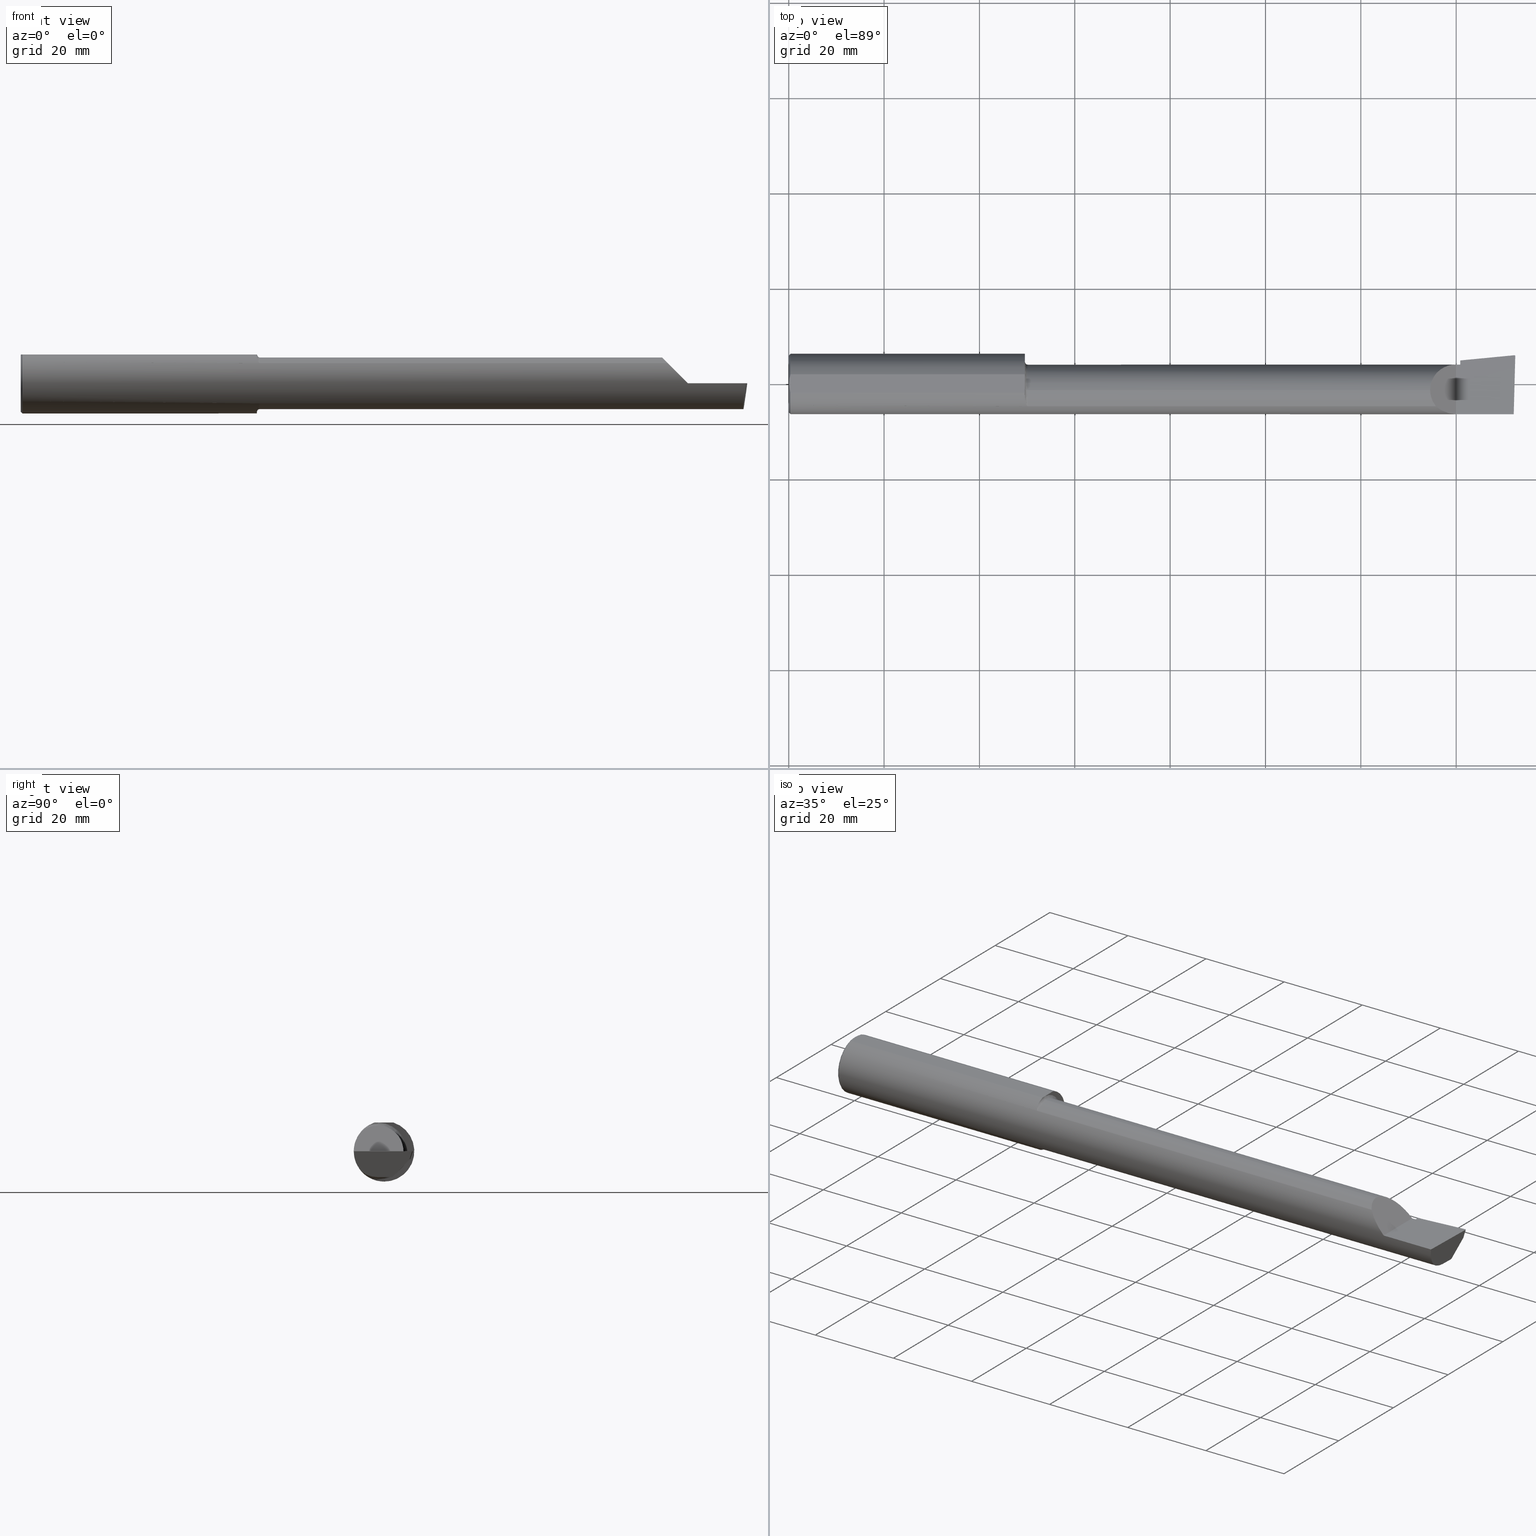
[diagram: canonical four-view strip — front | top / right | iso, engineering-drawing reading convention]
A machine part, canonical four-view strip (front | top / right | iso — engineering-drawing reading convention). The complete STEP part file that produces these views, byte-faithful:
ISO-10303-21;
HEADER;
FILE_DESCRIPTION (( 'STEP AP203' ),
    '1' );
FILE_NAME ('213732-B4904000R.STEP',
    '2024-04-17T17:40:06',
    ( '' ),
    ( '' ),
    'SwSTEP 2.0',
    'SolidWorks 2022',
    '' );
FILE_SCHEMA (( 'CONFIG_CONTROL_DESIGN' ));
ENDSEC;

DATA;
#1 = DIRECTION ( 'NONE',  ( 0.000000000000000000, -1.138839417068644240E-16, -1.000000000000000000 ) ) ;
#2 = CC_DESIGN_PERSON_AND_ORGANIZATION_ASSIGNMENT ( #689, #374, ( #426 ) ) ;
#3 = FACE_OUTER_BOUND ( 'NONE', #785, .T. ) ;
#4 = PLANE ( 'NONE',  #78 ) ;
#5 = AXIS2_PLACEMENT_3D ( 'NONE', #842, #166, #517 ) ;
#6 = LINE ( 'NONE', #798, #102 ) ;
#7 = CARTESIAN_POINT ( 'NONE',  ( 5.510000000000000675, 0.1601499999999997648, -1.849216666712503932E-16 ) ) ;
#8 = LINE ( 'NONE', #550, #459 ) ;
#9 = CARTESIAN_POINT ( 'NONE',  ( 5.987221270274242002, -0.2498499999999999888, -2.376254392518090263E-16 ) ) ;
#10 = CARTESIAN_POINT ( 'NONE',  ( 5.544999999999999929, -0.05299999999999998462, 0.000000000000000000 ) ) ;
#11 = EDGE_CURVE ( 'NONE', #371, #85, #113, .T. ) ;
#12 = CARTESIAN_POINT ( 'NONE',  ( 1.950000000000001066, -0.09104204635388346567, 0.2329453649474649279 ) ) ;
#13 = DIRECTION ( 'NONE',  ( -0.1053106618241940323, -0.6976485211320168078, -0.7086580314005197501 ) ) ;
#14 = EDGE_LOOP ( 'NONE', ( #855, #709, #665, #167 ) ) ;
#15 = AXIS2_PLACEMENT_3D ( 'NONE', #259, #786, #856 ) ;
#16 = EDGE_CURVE ( 'NONE', #847, #443, #46, .T. ) ;
#17 = FACE_OUTER_BOUND ( 'NONE', #144, .T. ) ;
#18 = DATE_AND_TIME ( #299, #611 ) ;
#19 = EDGE_LOOP ( 'NONE', ( #699, #800, #710, #235, #555 ) ) ;
#20 = CARTESIAN_POINT ( 'NONE',  ( 0.000000000000000000, -0.05299999999999998462, 0.000000000000000000 ) ) ;
#21 = ORIENTED_EDGE ( 'NONE', *, *, #671, .F. ) ;
#22 = CARTESIAN_POINT ( 'NONE',  ( 1.950000000000000844, 0.1851499999999995649, 0.000000000000000000 ) ) ;
#23 = PERSON_AND_ORGANIZATION ( #29, #864 ) ;
#24 = ORIENTED_EDGE ( 'NONE', *, *, #139, .F. ) ;
#25 = CARTESIAN_POINT ( 'NONE',  ( 1.951227564404961479, -0.1217005943024311032, -0.2193523119135126487 ) ) ;
#26 = ORIENTED_EDGE ( 'NONE', *, *, #781, .F. ) ;
#27 = DIRECTION ( 'NONE',  ( 0.000000000000000000, 1.000000000000000000, 0.000000000000000000 ) ) ;
#28 = APPROVAL_DATE_TIME ( #424, #804 ) ;
#29 = PERSON ( 'UNSPECIFIED', 'UNSPECIFIED', 'UNSPECIFIED', ('UNSPECIFIED'), ('UNSPECIFIED'), ('UNSPECIFIED') ) ;
#30 = ORIENTED_EDGE ( 'NONE', *, *, #694, .F. ) ;
#31 = CARTESIAN_POINT ( 'NONE',  ( 1.950000000000000844, -0.05299999999999996381, -0.2381499999999995565 ) ) ;
#32 = ORIENTED_EDGE ( 'NONE', *, *, #849, .F. ) ;
#33 = CARTESIAN_POINT ( 'NONE',  ( 1.950000000000000844, 0.07650098038587503646, 0.2378500000000000059 ) ) ;
#34 = CIRCLE ( 'NONE', #104, 0.2381499999999995565 ) ;
#35 = DATE_AND_TIME ( #357, #497 ) ;
#36 = LINE ( 'NONE', #670, #414 ) ;
#37 = EDGE_LOOP ( 'NONE', ( #652, #165, #183, #704 ) ) ;
#38 = CARTESIAN_POINT ( 'NONE',  ( 5.540349815208491790, 0.05592018782259707693, -0.1832193089843160150 ) ) ;
#39 = ORIENTED_EDGE ( 'NONE', *, *, #573, .F. ) ;
#40 = LINE ( 'NONE', #255, #283 ) ;
#41 = EDGE_CURVE ( 'NONE', #789, #427, #669, .T. ) ;
#42 = VERTEX_POINT ( 'NONE', #720 ) ;
#43 = B_SPLINE_CURVE_WITH_KNOTS ( 'NONE', 3,
 ( #537, #627, #614, #215, #161, #827, #485, #691, #224, #748, #358, #25, #431, #703 ),
 .UNSPECIFIED., .F., .F.,
 ( 4, 2, 2, 2, 2, 2, 4 ),
 ( 1.967619685288262155E-07, 0.0001090840123077893646, 0.0002179712626470499057, 0.0004357457633255821280, 0.0008712947646826483617, 0.001742392767396787334, 0.003484588772825062460 ),
 .UNSPECIFIED. ) ;
#44 = EDGE_CURVE ( 'NONE', #128, #101, #795, .T. ) ;
#45 = FACE_OUTER_BOUND ( 'NONE', #631, .T. ) ;
#46 = LINE ( 'NONE', #315, #851 ) ;
#47 = DIRECTION ( 'NONE',  ( 0.000000000000000000, 0.000000000000000000, -1.000000000000000000 ) ) ;
#48 = ORIENTED_EDGE ( 'NONE', *, *, #603, .T. ) ;
#49 = DIRECTION ( 'NONE',  ( 0.09165774897393347276, -0.9519021185660621054, 0.2923717047227284982 ) ) ;
#50 = AXIS2_PLACEMENT_3D ( 'NONE', #82, #360, #633 ) ;
#51 = EDGE_CURVE ( 'NONE', #821, #621, #783, .T. ) ;
#52 = AXIS2_PLACEMENT_3D ( 'NONE', #387, #96, #47 ) ;
#53 = ORIENTED_EDGE ( 'NONE', *, *, #790, .F. ) ;
#54 = CC_DESIGN_APPROVAL ( #591, ( #565 ) ) ;
#55 = DIRECTION ( 'NONE',  ( -1.000000000000000000, -0.000000000000000000, -0.000000000000000000 ) ) ;
#56 = ORIENTED_EDGE ( 'NONE', *, *, #221, .T. ) ;
#57 = B_SPLINE_CURVE_WITH_KNOTS ( 'NONE', 3,
 ( #408, #476, #743, #605 ),
 .UNSPECIFIED., .F., .F.,
 ( 4, 4 ),
 ( 0.4999999999997244982, 1.000000000000000000 ),
 .UNSPECIFIED. ) ;
#58 = LINE ( 'NONE', #668, #444 ) ;
#59 = VERTEX_POINT ( 'NONE', #724 ) ;
#60 = ORIENTED_EDGE ( 'NONE', *, *, #263, .T. ) ;
#61 = DIRECTION ( 'NONE',  ( 0.1219104985252926349, 0.000000000000000000, 0.9925410975618664811 ) ) ;
#62 = CARTESIAN_POINT ( 'NONE',  ( 5.990474961019650380, 0.2080126185684992302, -0.07112352112763106748 ) ) ;
#63 = CARTESIAN_POINT ( 'NONE',  ( 5.296849999999999170, -0.05299999999999998462, 0.2131499999999998951 ) ) ;
#64 = EDGE_CURVE ( 'NONE', #661, #251, #852, .T. ) ;
#65 = CARTESIAN_POINT ( 'NONE',  ( 5.510000000000000675, 0.1601499999999997648, -1.849216666712503932E-16 ) ) ;
#66 = CARTESIAN_POINT ( 'NONE',  ( 0.003000000000000063380, 0.01299872814765626154, 0.2378499999999999226 ) ) ;
#67 = AXIS2_PLACEMENT_3D ( 'NONE', #84, #499, #433 ) ;
#68 =( CONVERSION_BASED_UNIT ( 'INCH', #544 ) LENGTH_UNIT ( ) NAMED_UNIT ( #626 ) );
#69 = VECTOR ( 'NONE', #463, 39.37007874015748143 ) ;
#70 = CARTESIAN_POINT ( 'NONE',  ( 5.540349815208491790, 0.05592018782259707693, -0.1832193089843160150 ) ) ;
#71 = EDGE_CURVE ( 'NONE', #776, #85, #91, .T. ) ;
#72 = DIRECTION ( 'NONE',  ( 1.000000000000000000, 0.000000000000000000, 0.000000000000000000 ) ) ;
#73 = ADVANCED_FACE ( 'NONE', ( #392 ), #185, .T. ) ;
#74 = PLANE ( 'NONE',  #412 ) ;
#75 = B_SPLINE_CURVE_WITH_KNOTS ( 'NONE', 3,
 ( #306, #12, #556, #753, #154, #547, #688, #503, #770, #438, #619, #220, #749, #352, #423, #552 ),
 .UNSPECIFIED., .F., .F.,
 ( 4, 2, 2, 2, 2, 2, 2, 4 ),
 ( 0.0001034694911878576891, 0.0009591263138367855847, 0.001814783136485713507, 0.002670439959134641647, 0.003098268370459104307, 0.003312182576121339324, 0.003419139678952451845, 0.003526096781783564366 ),
 .UNSPECIFIED. ) ;
#76 = ADVANCED_BREP_SHAPE_REPRESENTATION ( '213732-B4904000R', ( #428, #191 ), #711 ) ;
#77 = CARTESIAN_POINT ( 'NONE',  ( 5.985236590184793926, 0.2182997624328546771, -0.06000000000000001860 ) ) ;
#78 = AXIS2_PLACEMENT_3D ( 'NONE', #345, #602, #275 ) ;
#79 = VECTOR ( 'NONE', #848, 39.37007874015748143 ) ;
#80 = PLANE ( 'NONE',  #696 ) ;
#81 =( BOUNDED_CURVE ( )  B_SPLINE_CURVE ( 3, ( #740, #607, #212, #145 ),
 .UNSPECIFIED., .F., .F. ) 
 B_SPLINE_CURVE_WITH_KNOTS ( ( 4, 4 ),
 ( 2.868174658477150363, 2.883234730632700860 ),
 .UNSPECIFIED. ) 
 CURVE ( )  GEOMETRIC_REPRESENTATION_ITEM ( )  RATIONAL_B_SPLINE_CURVE ( ( 1.000000000000000000, 0.9999810996081960335, 0.9999810996081960335, 1.000000000000000000 ) ) 
 REPRESENTATION_ITEM ( '' )  );
#82 = CARTESIAN_POINT ( 'NONE',  ( 1.975000000000000755, -0.05299999999999998462, 0.000000000000000000 ) ) ;
#83 = ORIENTED_EDGE ( 'NONE', *, *, #677, .T. ) ;
#84 = CARTESIAN_POINT ( 'NONE',  ( 6.000000000000000888, -0.05299999999999998462, -0.2131499999999999229 ) ) ;
#85 = VERTEX_POINT ( 'NONE', #262 ) ;
#86 = CARTESIAN_POINT ( 'NONE',  ( 5.990474961019650380, 0.2080126185684992302, -0.07112352112763106748 ) ) ;
#87 = ORIENTED_EDGE ( 'NONE', *, *, #528, .F. ) ;
#88 = CARTESIAN_POINT ( 'NONE',  ( 5.532795049205046389, 0.1343794326159111485, -0.1015966078791001453 ) ) ;
#89 = PERSON_AND_ORGANIZATION_ROLE ( 'classification_officer' ) ;
#90 = VERTEX_POINT ( 'NONE', #254 ) ;
#91 =( BOUNDED_CURVE ( )  B_SPLINE_CURVE ( 3, ( #577, #594, #325, #862 ),
 .UNSPECIFIED., .F., .F. ) 
 B_SPLINE_CURVE_WITH_KNOTS ( ( 4, 4 ),
 ( 3.511516179717748543, 3.604018710826264460 ),
 .UNSPECIFIED. ) 
 CURVE ( )  GEOMETRIC_REPRESENTATION_ITEM ( )  RATIONAL_B_SPLINE_CURVE ( ( 1.000000000000000000, 0.9992870672494020834, 0.9992870672494020834, 1.000000000000000000 ) ) 
 REPRESENTATION_ITEM ( '' )  );
#92 = EDGE_LOOP ( 'NONE', ( #707, #572, #53, #95, #32 ) ) ;
#93 = CARTESIAN_POINT ( 'NONE',  ( 0.01499999999999999771, 3.059780027669661931E-17, 0.2498499999999999888 ) ) ;
#94 = PERSON_AND_ORGANIZATION_ROLE ( 'design_supplier' ) ;
#95 = ORIENTED_EDGE ( 'NONE', *, *, #648, .T. ) ;
#96 = DIRECTION ( 'NONE',  ( 1.000000000000000000, 0.000000000000000000, 0.000000000000000000 ) ) ;
#97 = ORIENTED_EDGE ( 'NONE', *, *, #781, .T. ) ;
#98 = LINE ( 'NONE', #622, #738 ) ;
#99 = ORIENTED_EDGE ( 'NONE', *, *, #509, .T. ) ;
#100 = DIRECTION ( 'NONE',  ( -1.000000000000000000, -0.000000000000000000, -0.000000000000000000 ) ) ;
#101 = VERTEX_POINT ( 'NONE', #520 ) ;
#102 = VECTOR ( 'NONE', #806, 39.37007874015748143 ) ;
#103 = CARTESIAN_POINT ( 'NONE',  ( 5.543466858877803993, 0.05663251955087983402, -0.1827944341085906699 ) ) ;
#104 = AXIS2_PLACEMENT_3D ( 'NONE', #796, #195, #329 ) ;
#105 = DATE_TIME_ROLE ( 'classification_date' ) ;
#106 = EDGE_CURVE ( 'NONE', #289, #449, #253, .T. ) ;
#107 = ORIENTED_EDGE ( 'NONE', *, *, #106, .T. ) ;
#108 = EDGE_CURVE ( 'NONE', #432, #773, #655, .T. ) ;
#109 = ADVANCED_FACE ( 'NONE', ( #511 ), #74, .F. ) ;
#110 = CARTESIAN_POINT ( 'NONE',  ( 5.313215146136125000, -0.1485302233682069539, 0.1967848538638752587 ) ) ;
#111 = EDGE_LOOP ( 'NONE', ( #769, #420, #83, #563, #327 ) ) ;
#112 = DIRECTION ( 'NONE',  ( -1.000000000000000000, -0.000000000000000000, -0.000000000000000000 ) ) ;
#113 = LINE ( 'NONE', #589, #318 ) ;
#114 = CARTESIAN_POINT ( 'NONE',  ( 1.950001800035618738, -0.04901601311796697363, 0.2378500024320483464 ) ) ;
#115 = ORIENTED_EDGE ( 'NONE', *, *, #528, .T. ) ;
#116 = ADVANCED_FACE ( 'NONE', ( #808 ), #80, .F. ) ;
#117 = CARTESIAN_POINT ( 'NONE',  ( 5.987221270274242002, -0.2498499999999999888, -2.376254392518090263E-16 ) ) ;
#118 = CARTESIAN_POINT ( 'NONE',  ( 0.000000000000000000, -0.05299999999999998462, 0.000000000000000000 ) ) ;
#119 = DESIGN_CONTEXT ( 'detailed design', #525, 'design' ) ;
#120 = CARTESIAN_POINT ( 'NONE',  ( 1.950000000000000844, -0.04503596074371719188, 0.2378500000000000059 ) ) ;
#121 = ORIENTED_EDGE ( 'NONE', *, *, #815, .T. ) ;
#122 = CARTESIAN_POINT ( 'NONE',  ( 5.544999999999999929, -0.05299999999999998462, 0.000000000000000000 ) ) ;
#123 = CONICAL_SURFACE ( 'NONE', #401, 0.2498499999999999888, 0.7853981633974601584 ) ;
#124 = AXIS2_PLACEMENT_3D ( 'NONE', #308, #521, #788 ) ;
#125 = DIRECTION ( 'NONE',  ( 0.9953961983671787417, 0.09584575252022461966, -1.099304038737262581E-16 ) ) ;
#126 = CC_DESIGN_PERSON_AND_ORGANIZATION_ASSIGNMENT ( #697, #89, ( #565 ) ) ;
#127 =( LENGTH_UNIT ( ) NAMED_UNIT ( * ) SI_UNIT ( $, .METRE. ) );
#128 = VERTEX_POINT ( 'NONE', #415 ) ;
#129 = DIRECTION ( 'NONE',  ( 0.06658005426110773228, -0.6914603011188220627, -0.7193398003386548556 ) ) ;
#130 = CARTESIAN_POINT ( 'NONE',  ( 5.544999999999999929, 0.1943384830701256061, -1.858653481059795285E-15 ) ) ;
#131 = DIRECTION ( 'NONE',  ( -0.7071067811865511255, 0.000000000000000000, 0.7071067811865440200 ) ) ;
#132 = CARTESIAN_POINT ( 'NONE',  ( 0.008199648822849016708, 0.05156445313451110679, 0.2378500000000000059 ) ) ;
#133 = CARTESIAN_POINT ( 'NONE',  ( 5.964907988924525561, -0.1021668565906571902, -0.2131499999999999506 ) ) ;
#134 = DIRECTION ( 'NONE',  ( -0.1240019227989464928, -0.3022330132596633967, -0.9451342385281301661 ) ) ;
#136 = EDGE_CURVE ( 'NONE', #534, #294, #548, .T. ) ;
#135 = CIRCLE ( 'NONE', #260, 0.2381499999999995565 ) ;
#137 = AXIS2_PLACEMENT_3D ( 'NONE', #234, #854, #784 ) ;
#138 = EDGE_CURVE ( 'NONE', #430, #101, #745, .T. ) ;
#139 = EDGE_CURVE ( 'NONE', #661, #294, #81, .T. ) ;
#140 = DIRECTION ( 'NONE',  ( 0.000000000000000000, 0.000000000000000000, -1.000000000000000000 ) ) ;
#141 = CARTESIAN_POINT ( 'NONE',  ( 5.544999999999999929, -0.05299999999999998462, -0.2131499999999999229 ) ) ;
#142 = ADVANCED_FACE ( 'NONE', ( #209 ), #4, .T. ) ;
#143 = DIRECTION ( 'NONE',  ( 0.000000000000000000, 0.000000000000000000, 1.000000000000000000 ) ) ;
#144 = EDGE_LOOP ( 'NONE', ( #258, #551, #635, #388 ) ) ;
#145 = CARTESIAN_POINT ( 'NONE',  ( 5.544999999999999929, 0.1328281892403431474, -0.1044069278527783029 ) ) ;
#146 = VECTOR ( 'NONE', #461, 39.37007874015748143 ) ;
#147 = AXIS2_PLACEMENT_3D ( 'NONE', #477, #276, #613 ) ;
#148 = CARTESIAN_POINT ( 'NONE',  ( 5.985635073714584031, 0.2182954141789446856, -0.06004403198038586048 ) ) ;
#149 = DIRECTION ( 'NONE',  ( 0.000000000000000000, 0.000000000000000000, 1.000000000000000000 ) ) ;
#150 = ORIENTED_EDGE ( 'NONE', *, *, #139, .T. ) ;
#151 = CARTESIAN_POINT ( 'NONE',  ( 5.544999999999999929, -0.2500000000000000555, -1.887870261551340527E-16 ) ) ;
#152 = ORIENTED_EDGE ( 'NONE', *, *, #295, .T. ) ;
#153 = EDGE_LOOP ( 'NONE', ( #48, #540, #291 ) ) ;
#154 = CARTESIAN_POINT ( 'NONE',  ( 1.952700302592143444, -0.1312404656039941886, 0.2128935242986054743 ) ) ;
#155 = APPROVAL_ROLE ( '' ) ;
#156 = VERTEX_POINT ( 'NONE', #543 ) ;
#157 = AXIS2_PLACEMENT_3D ( 'NONE', #465, #812, #149 ) ;
#158 = CARTESIAN_POINT ( 'NONE',  ( 5.999806390372789622, 0.2307563466314217493, -2.389946825684086957E-16 ) ) ;
#159 = CALENDAR_DATE ( 2024, 17, 4 ) ;
#160 = EDGE_LOOP ( 'NONE', ( #99, #628, #383, #729, #832, #87, #437, #545 ) ) ;
#161 = CARTESIAN_POINT ( 'NONE',  ( 1.969285582744839891, -0.1841881072713822121, -0.1688230283719335256 ) ) ;
#162 = ORIENTED_EDGE ( 'NONE', *, *, #850, .F. ) ;
#163 = CARTESIAN_POINT ( 'NONE',  ( 5.390325100969867833, -0.2278791102234778154, 0.1196748990301315652 ) ) ;
#164 = DATE_AND_TIME ( #557, #659 ) ;
#165 = ORIENTED_EDGE ( 'NONE', *, *, #206, .T. ) ;
#166 = DIRECTION ( 'NONE',  ( -1.000000000000000000, -0.000000000000000000, -0.000000000000000000 ) ) ;
#167 = ORIENTED_EDGE ( 'NONE', *, *, #16, .T. ) ;
#168 = CARTESIAN_POINT ( 'NONE',  ( 5.537149611766867707, 0.08915557130098419880, -0.1634615431086031412 ) ) ;
#169 = APPROVAL_DATE_TIME ( #18, #250 ) ;
#170 = EDGE_CURVE ( 'NONE', #645, #289, #774, .T. ) ;
#171 = CARTESIAN_POINT ( 'NONE',  ( 3.760000000000000231, -0.1868028301886797693, -0.1659208399614083285 ) ) ;
#172 = ORIENTED_EDGE ( 'NONE', *, *, #737, .T. ) ;
#173 = VECTOR ( 'NONE', #582, 39.37007874015748143 ) ;
#174 = DIRECTION ( 'NONE',  ( -1.000000000000000000, -0.000000000000000000, -0.000000000000000000 ) ) ;
#175 = AXIS2_PLACEMENT_3D ( 'NONE', #441, #436, #717 ) ;
#176 = DIRECTION ( 'NONE',  ( 0.000000000000000000, 0.000000000000000000, 1.000000000000000000 ) ) ;
#177 = EDGE_CURVE ( 'NONE', #156, #821, #529, .T. ) ;
#178 = LINE ( 'NONE', #364, #321 ) ;
#179 = ORIENTED_EDGE ( 'NONE', *, *, #331, .F. ) ;
#180 = FACE_OUTER_BOUND ( 'NONE', #857, .T. ) ;
#181 = CARTESIAN_POINT ( 'NONE',  ( 5.991359894127324281, 0.2138750095474696578, -0.06516861643763578738 ) ) ;
#182 = CARTESIAN_POINT ( 'NONE',  ( 5.544999999999999929, 0.1759098001822371471, -0.06000000000000002554 ) ) ;
#183 = ORIENTED_EDGE ( 'NONE', *, *, #475, .F. ) ;
#184 = CARTESIAN_POINT ( 'NONE',  ( 6.000000000000000888, -0.05299999999999998462, -0.2131499999999999229 ) ) ;
#185 = CYLINDRICAL_SURFACE ( 'NONE', #342, 0.2131499999999998951 ) ;
#186 = CARTESIAN_POINT ( 'NONE',  ( 5.544999999999999929, 0.1943384830701195554, 0.000000000000000000 ) ) ;
#187 = ORIENTED_EDGE ( 'NONE', *, *, #701, .F. ) ;
#188 = DIRECTION ( 'NONE',  ( -1.000000000000000000, -0.000000000000000000, -0.000000000000000000 ) ) ;
#189 = AXIS2_PLACEMENT_3D ( 'NONE', #20, #290, #755 ) ;
#190 = ORIENTED_EDGE ( 'NONE', *, *, #41, .F. ) ;
#191 = AXIS2_PLACEMENT_3D ( 'NONE', #840, #361, #222 ) ;
#192 = CARTESIAN_POINT ( 'NONE',  ( 5.968492717492765109, -0.1868028301886797693, -0.1659208399614083285 ) ) ;
#193 = CARTESIAN_POINT ( 'NONE',  ( 0.01499999999999999771, 0.07650098038587500870, 0.2378499999999999226 ) ) ;
#194 = VERTEX_POINT ( 'NONE', #207 ) ;
#195 = DIRECTION ( 'NONE',  ( -1.000000000000000000, -0.000000000000000000, -0.000000000000000000 ) ) ;
#196 = CARTESIAN_POINT ( 'NONE',  ( 5.999910038027512549, 0.2347144908750987136, -2.397718816852611591E-16 ) ) ;
#197 = EDGE_CURVE ( 'NONE', #128, #752, #802, .T. ) ;
#198 = FACE_OUTER_BOUND ( 'NONE', #489, .T. ) ;
#199 = B_SPLINE_CURVE_WITH_KNOTS ( 'NONE', 3,
 ( #376, #120, #114, #590 ),
 .UNSPECIFIED., .F., .F.,
 ( 4, 4 ),
 ( 0.000000000000000000, 0.4999999999997244982 ),
 .UNSPECIFIED. ) ;
#200 = EDGE_CURVE ( 'NONE', #596, #663, #803, .T. ) ;
#201 = EDGE_CURVE ( 'NONE', #773, #828, #135, .T. ) ;
#202 =( BOUNDED_CURVE ( )  B_SPLINE_CURVE ( 3, ( #326, #863, #133, #667 ),
 .UNSPECIFIED., .F., .F. ) 
 B_SPLINE_CURVE_WITH_KNOTS ( ( 4, 4 ),
 ( 5.814587959757558266, 6.493234751459799448 ),
 .UNSPECIFIED. ) 
 CURVE ( )  GEOMETRIC_REPRESENTATION_ITEM ( )  RATIONAL_B_SPLINE_CURVE ( ( 1.000000000000000000, 0.9619867256453021875, 0.9619867256453021875, 1.000000000000000000 ) ) 
 REPRESENTATION_ITEM ( '' )  );
#203 = CARTESIAN_POINT ( 'NONE',  ( 5.997312560284835392, 0.2374961668063730880, -2.394850192502084978E-16 ) ) ;
#204 = CARTESIAN_POINT ( 'NONE',  ( 5.528944985009564661, 0.1743638780700111357, -0.06000000000000002554 ) ) ;
#205 = AXIS2_PLACEMENT_3D ( 'NONE', #323, #244, #583 ) ;
#206 = EDGE_CURVE ( 'NONE', #85, #156, #612, .T. ) ;
#207 = CARTESIAN_POINT ( 'NONE',  ( 1.950000000000000844, -0.08036415094339827148, 0.2365726648265743803 ) ) ;
#208 = ORIENTED_EDGE ( 'NONE', *, *, #64, .T. ) ;
#209 = FACE_OUTER_BOUND ( 'NONE', #482, .T. ) ;
#210 = DIRECTION ( 'NONE',  ( 0.7071067811865391350, 0.000000000000000000, -0.7071067811865558994 ) ) ;
#211 = EDGE_CURVE ( 'NONE', #752, #309, #6, .T. ) ;
#212 = CARTESIAN_POINT ( 'NONE',  ( 5.541044210672205317, 0.1333523194825144975, -0.1034740570574017304 ) ) ;
#213 = CARTESIAN_POINT ( 'NONE',  ( 1.950000000000000844, -0.08036415094339827148, -0.2365726648265743803 ) ) ;
#214 = VECTOR ( 'NONE', #27, 39.37007874015748143 ) ;
#215 = CARTESIAN_POINT ( 'NONE',  ( 1.970138573936400572, -0.1849738682364341913, -0.1679602226613238214 ) ) ;
#216 = ORIENTED_EDGE ( 'NONE', *, *, #211, .T. ) ;
#217 = DIRECTION ( 'NONE',  ( 0.000000000000000000, 0.000000000000000000, -1.000000000000000000 ) ) ;
#218 = CARTESIAN_POINT ( 'NONE',  ( 1.975000000000000755, -0.05299999999999998462, 0.2381499999999995565 ) ) ;
#219 = EDGE_LOOP ( 'NONE', ( #813, #506, #831, #700, #297, #513, #228, #530, #248, #187, #502, #491, #518 ) ) ;
#220 = CARTESIAN_POINT ( 'NONE',  ( 1.969290397284158445, -0.1841927918507063056, 0.1688179232533542906 ) ) ;
#221 = EDGE_CURVE ( 'NONE', #42, #789, #57, .T. ) ;
#222 = DIRECTION ( 'NONE',  ( 1.000000000000000000, 0.000000000000000000, 0.000000000000000000 ) ) ;
#223 = ORIENTED_EDGE ( 'NONE', *, *, #734, .T. ) ;
#224 = CARTESIAN_POINT ( 'NONE',  ( 1.961285743882608568, -0.1704402150608129995, -0.1827701868778683070 ) ) ;
#225 = ORIENTED_EDGE ( 'NONE', *, *, #170, .F. ) ;
#226 = LINE ( 'NONE', #492, #442 ) ;
#227 = APPROVAL_DATE_TIME ( #164, #591 ) ;
#228 = ORIENTED_EDGE ( 'NONE', *, *, #603, .F. ) ;
#229 = VECTOR ( 'NONE', #399, 39.37007874015747433 ) ;
#230 = FACE_OUTER_BOUND ( 'NONE', #19, .T. ) ;
#231 = APPROVAL_ROLE ( '' ) ;
#232 = EDGE_LOOP ( 'NONE', ( #522, #762, #658, #30, #121, #115, #859, #24, #841, #300 ) ) ;
#233 =( BOUNDED_CURVE ( )  B_SPLINE_CURVE ( 3, ( #63, #348, #346, #7 ),
 .UNSPECIFIED., .F., .T. ) 
 B_SPLINE_CURVE_WITH_KNOTS ( ( 4, 4 ),
 ( 0.000000000000000000, 1.570796326794897002 ),
 .UNSPECIFIED. ) 
 CURVE ( )  GEOMETRIC_REPRESENTATION_ITEM ( )  RATIONAL_B_SPLINE_CURVE ( ( 1.000000000000000000, 0.8047378541243649375, 0.8047378541243649375, 1.000000000000000000 ) ) 
 REPRESENTATION_ITEM ( '' )  );
#234 = CARTESIAN_POINT ( 'NONE',  ( 0.01499999999999999771, 0.000000000000000000, 0.000000000000000000 ) ) ;
#235 = ORIENTED_EDGE ( 'NONE', *, *, #507, .T. ) ;
#236 = DIRECTION ( 'NONE',  ( -1.000000000000000000, -0.000000000000000000, -0.000000000000000000 ) ) ;
#237 = PERSON_AND_ORGANIZATION_ROLE ( 'design_owner' ) ;
#238 = EDGE_LOOP ( 'NONE', ( #435, #60, #107, #579, #367 ) ) ;
#239 = FACE_OUTER_BOUND ( 'NONE', #238, .T. ) ;
#240 = ORIENTED_EDGE ( 'NONE', *, *, #509, .F. ) ;
#241 = DIRECTION ( 'NONE',  ( 0.000000000000000000, 0.000000000000000000, 1.000000000000000000 ) ) ;
#242 = ADVANCED_FACE ( 'NONE', ( #198 ), #467, .T. ) ;
#243 = DIRECTION ( 'NONE',  ( 0.000000000000000000, 0.000000000000000000, 1.000000000000000000 ) ) ;
#244 = DIRECTION ( 'NONE',  ( -1.000000000000000000, -0.000000000000000000, -0.000000000000000000 ) ) ;
#245 = ORIENTED_EDGE ( 'NONE', *, *, #454, .T. ) ;
#246 = CARTESIAN_POINT ( 'NONE',  ( 5.544999999999999929, 0.05698775240724696101, -0.1825804393148461879 ) ) ;
#247 = AXIS2_PLACEMENT_3D ( 'NONE', #186, #708, #457 ) ;
#248 = ORIENTED_EDGE ( 'NONE', *, *, #507, .F. ) ;
#249 = CARTESIAN_POINT ( 'NONE',  ( 5.296849999999999170, -0.1021668565906575510, 0.2131499999999998951 ) ) ;
#250 = APPROVAL ( #500, 'UNSPECIFIED' ) ;
#251 = VERTEX_POINT ( 'NONE', #70 ) ;
#252 = FACE_OUTER_BOUND ( 'NONE', #418, .T. ) ;
#253 = B_SPLINE_CURVE_WITH_KNOTS ( 'NONE', 3,
 ( #451, #66, #733, #132, #787, #456 ),
 .UNSPECIFIED., .F., .F.,
 ( 4, 2, 4 ),
 ( 0.004653101494310745746, 0.005634627094920352519, 0.006616152695529959292 ),
 .UNSPECIFIED. ) ;
#254 = CARTESIAN_POINT ( 'NONE',  ( 5.966195468375011579, -0.05299999999999998462, -0.2131499999999999229 ) ) ;
#255 = CARTESIAN_POINT ( 'NONE',  ( 5.960530997312603496, 0.1350294407609074487, -0.2993543799560085539 ) ) ;
#256 = ORIENTED_EDGE ( 'NONE', *, *, #310, .F. ) ;
#257 = CARTESIAN_POINT ( 'NONE',  ( 5.527186805775590628, 0.1926232675529001293, -6.829619984160658046E-17 ) ) ;
#258 = ORIENTED_EDGE ( 'NONE', *, *, #574, .T. ) ;
#259 = CARTESIAN_POINT ( 'NONE',  ( 5.544999999999999929, 0.1943384830701195554, 0.000000000000000000 ) ) ;
#260 = AXIS2_PLACEMENT_3D ( 'NONE', #341, #266, #143 ) ;
#261 = AXIS2_PLACEMENT_3D ( 'NONE', #274, #410, #140 ) ;
#262 = CARTESIAN_POINT ( 'NONE',  ( 5.992906680581904233, 0.2374669910246703375, -2.382533214603385385E-16 ) ) ;
#263 = EDGE_CURVE ( 'NONE', #663, #289, #419, .T. ) ;
#264 = CARTESIAN_POINT ( 'NONE',  ( 5.544999999999999929, 0.1601500000000002366, 4.235963549344515614E-16 ) ) ;
#265 = EDGE_CURVE ( 'NONE', #847, #430, #672, .T. ) ;
#266 = DIRECTION ( 'NONE',  ( -1.000000000000000000, -0.000000000000000000, -0.000000000000000000 ) ) ;
#267 = CARTESIAN_POINT ( 'NONE',  ( 1.975000000000000755, -0.1868028301886807130, -0.1659208399614071627 ) ) ;
#268 = CARTESIAN_POINT ( 'NONE',  ( 6.000000000000000888, 0.2998500000000000609, 0.2378499999999999504 ) ) ;
#269 = CARTESIAN_POINT ( 'NONE',  ( 1.950000000000000844, 0.000000000000000000, 0.000000000000000000 ) ) ;
#270 = DIRECTION ( 'NONE',  ( -1.000000000000000000, -0.000000000000000000, -0.000000000000000000 ) ) ;
#271 = AXIS2_PLACEMENT_3D ( 'NONE', #10, #686, #678 ) ;
#272 = VECTOR ( 'NONE', #595, 39.37007874015748143 ) ;
#273 = CC_DESIGN_PERSON_AND_ORGANIZATION_ASSIGNMENT ( #754, #94, ( #426 ) ) ;
#274 = CARTESIAN_POINT ( 'NONE',  ( 0.000000000000000000, 0.000000000000000000, 0.000000000000000000 ) ) ;
#275 = DIRECTION ( 'NONE',  ( -0.09584575252021169944, 0.9953961983671798519, 0.000000000000000000 ) ) ;
#276 = DIRECTION ( 'NONE',  ( -1.000000000000000000, -0.000000000000000000, -0.000000000000000000 ) ) ;
#277 = CARTESIAN_POINT ( 'NONE',  ( 1.975000000000000755, -0.05299999999999998462, 0.000000000000000000 ) ) ;
#278 = FACE_OUTER_BOUND ( 'NONE', #219, .T. ) ;
#279 = ORIENTED_EDGE ( 'NONE', *, *, #618, .T. ) ;
#280 = CARTESIAN_POINT ( 'NONE',  ( 1.975000000000000755, -0.05299999999999996381, -0.2381499999999995565 ) ) ;
#281 = FACE_OUTER_BOUND ( 'NONE', #111, .T. ) ;
#282 = CIRCLE ( 'NONE', #698, 0.2348499999999996424 ) ;
#283 = VECTOR ( 'NONE', #312, 39.37007874015748854 ) ;
#284 = ORIENTED_EDGE ( 'NONE', *, *, #197, .F. ) ;
#285 = ADVANCED_FACE ( 'NONE', ( #230 ), #123, .T. ) ;
#286 = EDGE_CURVE ( 'NONE', #534, #371, #819, .T. ) ;
#287 = ADVANCED_FACE ( 'NONE', ( #17 ), #833, .F. ) ;
#288 = CARTESIAN_POINT ( 'NONE',  ( 5.510000000000000675, -0.2498499999999999888, -1.849216666712503932E-16 ) ) ;
#289 = VERTEX_POINT ( 'NONE', #568 ) ;
#290 = DIRECTION ( 'NONE',  ( -1.000000000000000000, -0.000000000000000000, -0.000000000000000000 ) ) ;
#291 = ORIENTED_EDGE ( 'NONE', *, *, #41, .T. ) ;
#292 = DIRECTION ( 'NONE',  ( 1.000000000000000000, 0.000000000000000000, 0.000000000000000000 ) ) ;
#293 = PERSON_AND_ORGANIZATION ( #29, #864 ) ;
#294 = VERTEX_POINT ( 'NONE', #823 ) ;
#295 = EDGE_CURVE ( 'NONE', #773, #101, #333, .T. ) ;
#296 =( BOUNDED_CURVE ( )  B_SPLINE_CURVE ( 3, ( #288, #561, #163, #483 ),
 .UNSPECIFIED., .F., .F. ) 
 B_SPLINE_CURVE_WITH_KNOTS ( ( 4, 4 ),
 ( 4.712388980384689674, 5.438654041019565177 ),
 .UNSPECIFIED. ) 
 CURVE ( )  GEOMETRIC_REPRESENTATION_ITEM ( )  RATIONAL_B_SPLINE_CURVE ( ( 1.000000000000000000, 0.9565258159411005323, 0.9565258159411005323, 1.000000000000000000 ) ) 
 REPRESENTATION_ITEM ( '' )  );
#297 = ORIENTED_EDGE ( 'NONE', *, *, #16, .F. ) ;
#298 = DIRECTION ( 'NONE',  ( 0.000000000000000000, 0.000000000000000000, 1.000000000000000000 ) ) ;
#299 = CALENDAR_DATE ( 2024, 17, 4 ) ;
#300 = ORIENTED_EDGE ( 'NONE', *, *, #454, .F. ) ;
#301 = CARTESIAN_POINT ( 'NONE',  ( 5.344079160038591070, -0.1868028301886806020, 0.1659208399614074680 ) ) ;
#302 = EDGE_LOOP ( 'NONE', ( #640, #284, #498 ) ) ;
#303 = VECTOR ( 'NONE', #775, 39.37007874015748854 ) ;
#304 = PRODUCT_RELATED_PRODUCT_CATEGORY ( 'detail', '', ( #402 ) ) ;
#305 = APPROVAL_PERSON_ORGANIZATION ( #824, #804, #155 ) ;
#306 = CARTESIAN_POINT ( 'NONE',  ( 1.950000000000000844, -0.08036415094339827148, 0.2365726648265743803 ) ) ;
#307 = ORIENTED_EDGE ( 'NONE', *, *, #108, .T. ) ;
#308 = CARTESIAN_POINT ( 'NONE',  ( 1.950000000000000844, 0.1851499999999995649, 0.000000000000000000 ) ) ;
#309 = VERTEX_POINT ( 'NONE', #839 ) ;
#310 = EDGE_CURVE ( 'NONE', #59, #443, #296, .T. ) ;
#311 = CARTESIAN_POINT ( 'NONE',  ( 5.344079160038591070, -0.1868028301886806020, 0.1659208399614074680 ) ) ;
#312 = DIRECTION ( 'NONE',  ( 0.1240019227989464512, 0.3022330132596632857, 0.9451342385281300551 ) ) ;
#313 = ORIENTED_EDGE ( 'NONE', *, *, #64, .F. ) ;
#314 = CARTESIAN_POINT ( 'NONE',  ( 1.975000000000000755, -0.05299999999999998462, 0.000000000000000000 ) ) ;
#315 = CARTESIAN_POINT ( 'NONE',  ( 3.760000000000000231, -0.1868028301886797693, 0.1659208399614083285 ) ) ;
#316 = CYLINDRICAL_SURFACE ( 'NONE', #5, 0.2131499999999998951 ) ;
#317 = VERTEX_POINT ( 'NONE', #33 ) ;
#318 = VECTOR ( 'NONE', #125, 39.37007874015748143 ) ;
#319 = AXIS2_PLACEMENT_3D ( 'NONE', #218, #620, #531 ) ;
#320 = DIRECTION ( 'NONE',  ( -0.1240019227989464928, -0.3022330132596633967, -0.9451342385281301661 ) ) ;
#321 = VECTOR ( 'NONE', #636, 39.37007874015748143 ) ;
#322 = CARTESIAN_POINT ( 'NONE',  ( 5.985635073714584031, 0.2182954141789446856, -0.06004403198038586048 ) ) ;
#323 = CARTESIAN_POINT ( 'NONE',  ( 0.01499999999999999771, 0.000000000000000000, 0.000000000000000000 ) ) ;
#324 = EDGE_LOOP ( 'NONE', ( #687, #152, #592, #447 ) ) ;
#325 = CARTESIAN_POINT ( 'NONE',  ( 5.993108609909234552, 0.2374864346074021526, -2.390207398372340352E-16 ) ) ;
#326 = CARTESIAN_POINT ( 'NONE',  ( 5.968492717492765109, -0.1868028301886797693, -0.1659208399614083285 ) ) ;
#327 = ORIENTED_EDGE ( 'NONE', *, *, #138, .T. ) ;
#328 = CARTESIAN_POINT ( 'NONE',  ( 1.975000000000000755, -0.05299999999999998462, 0.2131499999999995620 ) ) ;
#329 = DIRECTION ( 'NONE',  ( 0.000000000000000000, 0.000000000000000000, 1.000000000000000000 ) ) ;
#330 = EDGE_CURVE ( 'NONE', #427, #645, #98, .T. ) ;
#331 = EDGE_CURVE ( 'NONE', #661, #251, #741, .T. ) ;
#332 = CARTESIAN_POINT ( 'NONE',  ( 4.678149108241350816E-32, 0.1601499999999999035, 4.235963549344508711E-16 ) ) ;
#333 = CIRCLE ( 'NONE', #814, 0.02499999999999993894 ) ;
#334 = DIRECTION ( 'NONE',  ( 0.000000000000000000, 0.000000000000000000, 1.000000000000000000 ) ) ;
#335 = CC_DESIGN_APPROVAL ( #804, ( #378 ) ) ;
#336 = PLANE ( 'NONE',  #726 ) ;
#337 = EDGE_CURVE ( 'NONE', #194, #847, #75, .T. ) ;
#338 = LINE ( 'NONE', #681, #372 ) ;
#339 = DIRECTION ( 'NONE',  ( 0.06894566448119621160, -0.7160281025913034503, 0.6946583704589934793 ) ) ;
#340 = LINE ( 'NONE', #332, #481 ) ;
#341 = CARTESIAN_POINT ( 'NONE',  ( 1.950000000000000844, -0.05299999999999998462, 0.000000000000000000 ) ) ;
#342 = AXIS2_PLACEMENT_3D ( 'NONE', #118, #654, #176 ) ;
#343 = TOROIDAL_SURFACE ( 'NONE', #624, 0.2381499999999995565, 0.02499999999999992159 ) ;
#344 = DIRECTION ( 'NONE',  ( 0.9953961983671800740, 0.09584575252021028391, -1.516874858616837700E-17 ) ) ;
#345 = CARTESIAN_POINT ( 'NONE',  ( 5.535684672073137413, 0.1043695517189363459, -0.2900000000000002021 ) ) ;
#346 = CARTESIAN_POINT ( 'NONE',  ( 5.385139620819824557, 0.1601499999999999313, 0.1248603791801746882 ) ) ;
#347 = CARTESIAN_POINT ( 'NONE',  ( 0.01499999999999999771, 0.000000000000000000, 0.000000000000000000 ) ) ;
#348 = CARTESIAN_POINT ( 'NONE',  ( 5.296849999999999170, 0.07186037918017477988, 0.2131499999999999229 ) ) ;
#349 = ADVANCED_FACE ( 'NONE', ( #695 ), #629, .T. ) ;
#350 = EDGE_CURVE ( 'NONE', #317, #432, #226, .T. ) ;
#351 = VERTEX_POINT ( 'NONE', #158 ) ;
#352 = CARTESIAN_POINT ( 'NONE',  ( 1.972243150415552204, -0.1862809296394759839, 0.1665094106511973981 ) ) ;
#353 = AXIS2_PLACEMENT_3D ( 'NONE', #22, #292, #829 ) ;
#354 = CIRCLE ( 'NONE', #549, 0.2498499999999999888 ) ;
#355 = CYLINDRICAL_SURFACE ( 'NONE', #189, 0.2131499999999998951 ) ;
#356 = ORIENTED_EDGE ( 'NONE', *, *, #772, .F. ) ;
#357 = CALENDAR_DATE ( 2024, 17, 4 ) ;
#358 = CARTESIAN_POINT ( 'NONE',  ( 1.955537042546467541, -0.1495003888705001283, -0.2004994225712662947 ) ) ;
#359 = ORIENTED_EDGE ( 'NONE', *, *, #330, .F. ) ;
#360 = DIRECTION ( 'NONE',  ( -1.000000000000000000, -0.000000000000000000, -0.000000000000000000 ) ) ;
#361 = DIRECTION ( 'NONE',  ( 0.000000000000000000, 0.000000000000000000, 1.000000000000000000 ) ) ;
#362 = ORIENTED_EDGE ( 'NONE', *, *, #200, .T. ) ;
#363 = CC_DESIGN_DATE_AND_TIME_ASSIGNMENT ( #771, #105, ( #565 ) ) ;
#364 = CARTESIAN_POINT ( 'NONE',  ( 5.544999999999999929, 0.2148312740513258212, -0.01988118725737621217 ) ) ;
#365 = EDGE_LOOP ( 'NONE', ( #484, #56, #394, #722, #838 ) ) ;
#366 = CARTESIAN_POINT ( 'NONE',  ( 5.540349815208491790, 0.05592018782259707693, -0.1832193089843160150 ) ) ;
#367 = ORIENTED_EDGE ( 'NONE', *, *, #866, .F. ) ;
#368 = EDGE_CURVE ( 'NONE', #663, #596, #282, .T. ) ;
#369 = CARTESIAN_POINT ( 'NONE',  ( 5.296849999999999170, -0.05299999999999998462, 0.2131499999999998951 ) ) ;
#370 = VECTOR ( 'NONE', #533, 39.37007874015748854 ) ;
#371 = VERTEX_POINT ( 'NONE', #515 ) ;
#372 = VECTOR ( 'NONE', #344, 39.37007874015748854 ) ;
#373 = DIRECTION ( 'NONE',  ( 0.9953961983671800740, 0.09584575252021031166, -0.000000000000000000 ) ) ;
#374 = PERSON_AND_ORGANIZATION_ROLE ( 'creator' ) ;
#375 = ORIENTED_EDGE ( 'NONE', *, *, #737, .F. ) ;
#376 = CARTESIAN_POINT ( 'NONE',  ( 1.950000000000000844, -0.04105010460297724845, 0.2378500000000000059 ) ) ;
#377 = ORIENTED_EDGE ( 'NONE', *, *, #731, .F. ) ;
#378 = PRODUCT_DEFINITION ( 'UNKNOWN', '', #426, #119 ) ;
#379 = CARTESIAN_POINT ( 'NONE',  ( 1.975000000000000755, -0.05299999999999998462, 0.000000000000000000 ) ) ;
#380 = ORIENTED_EDGE ( 'NONE', *, *, #51, .T. ) ;
#381 = FACE_OUTER_BOUND ( 'NONE', #160, .T. ) ;
#382 = ADVANCED_FACE ( 'NONE', ( #180 ), #791, .T. ) ;
#383 = ORIENTED_EDGE ( 'NONE', *, *, #71, .T. ) ;
#384 = ADVANCED_FACE ( 'NONE', ( #861 ), #343, .F. ) ;
#385 = LINE ( 'NONE', #455, #389 ) ;
#386 = CARTESIAN_POINT ( 'NONE',  ( 1.950000000000000844, 0.2998500000000000609, 0.2378499999999999504 ) ) ;
#387 = CARTESIAN_POINT ( 'NONE',  ( 1.950000000000000844, 0.000000000000000000, 0.000000000000000000 ) ) ;
#388 = ORIENTED_EDGE ( 'NONE', *, *, #197, .T. ) ;
#389 = VECTOR ( 'NONE', #373, 39.37007874015748854 ) ;
#390 = DIRECTION ( 'NONE',  ( 0.000000000000000000, 0.000000000000000000, 1.000000000000000000 ) ) ;
#391 = ADVANCED_FACE ( 'NONE', ( #252 ), #844, .F. ) ;
#392 = FACE_OUTER_BOUND ( 'NONE', #92, .T. ) ;
#393 =( NAMED_UNIT ( * ) SI_UNIT ( $, .STERADIAN. ) SOLID_ANGLE_UNIT ( ) );
#394 = ORIENTED_EDGE ( 'NONE', *, *, #818, .F. ) ;
#395 = LINE ( 'NONE', #527, #79 ) ;
#396 = CARTESIAN_POINT ( 'NONE',  ( 5.528944985009564661, 0.1743638780700111357, -0.06000000000000002554 ) ) ;
#397 = LINE ( 'NONE', #600, #69 ) ;
#398 = CARTESIAN_POINT ( 'NONE',  ( 1.950000000000000844, -0.05299999999999998462, 0.000000000000000000 ) ) ;
#399 = DIRECTION ( 'NONE',  ( 0.000000000000000000, 0.2936076258024042374, 0.9559260233253803474 ) ) ;
#400 = ADVANCED_FACE ( 'NONE', ( #858 ), #586, .F. ) ;
#401 = AXIS2_PLACEMENT_3D ( 'NONE', #347, #487, #217 ) ;
#402 = PRODUCT ( '213732-B4904000R', '213732-B4904000R', '', ( #553 ) ) ;
#403 = CIRCLE ( 'NONE', #205, 0.2498499999999999888 ) ;
#404 = DIRECTION ( 'NONE',  ( 0.000000000000000000, -0.6963153109074925462, -0.7177360153954948085 ) ) ;
#405 = CARTESIAN_POINT ( 'NONE',  ( 5.973097331270540877, -0.2278791102234775101, -0.1196748990301323562 ) ) ;
#406 = DIRECTION ( 'NONE',  ( 0.000000000000000000, 1.000000000000000000, -1.707404996040164265E-16 ) ) ;
#407 = APPLICATION_CONTEXT ( 'configuration controlled 3d designs of mechanical parts and assemblies' ) ;
#408 = CARTESIAN_POINT ( 'NONE',  ( 1.950000900032403450, -0.05299999999999998462, 0.2378500000000221548 ) ) ;
#409 = ORIENTED_EDGE ( 'NONE', *, *, #221, .F. ) ;
#410 = DIRECTION ( 'NONE',  ( 1.000000000000000000, 0.000000000000000000, 0.000000000000000000 ) ) ;
#411 = DIRECTION ( 'NONE',  ( 0.000000000000000000, 1.000000000000000000, -1.138839417068644240E-16 ) ) ;
#412 = AXIS2_PLACEMENT_3D ( 'NONE', #268, #1, #411 ) ;
#413 = DIRECTION ( 'NONE',  ( -1.000000000000000000, -0.000000000000000000, -0.000000000000000000 ) ) ;
#414 = VECTOR ( 'NONE', #13, 39.37007874015748854 ) ;
#415 = CARTESIAN_POINT ( 'NONE',  ( 5.544999999999999929, -0.05299999999999998462, -0.2131499999999999229 ) ) ;
#416 = ADVANCED_FACE ( 'NONE', ( #45 ), #519, .T. ) ;
#417 = ADVANCED_FACE ( 'NONE', ( #580 ), #450, .F. ) ;
#418 = EDGE_LOOP ( 'NONE', ( #26, #172, #240, #727, #440, #21 ) ) ;
#419 = LINE ( 'NONE', #93, #598 ) ;
#420 = ORIENTED_EDGE ( 'NONE', *, *, #108, .F. ) ;
#421 = EDGE_LOOP ( 'NONE', ( #362, #637 ) ) ;
#422 = EDGE_CURVE ( 'NONE', #458, #59, #395, .T. ) ;
#423 = CARTESIAN_POINT ( 'NONE',  ( 1.973548866468136653, -0.1868028301907333211, 0.1659208399590964278 ) ) ;
#424 = DATE_AND_TIME ( #159, #728 ) ;
#425 = TOROIDAL_SURFACE ( 'NONE', #157, 0.2381499999999995565, 0.02499999999999992159 ) ;
#426 = PRODUCT_DEFINITION_FORMATION_WITH_SPECIFIED_SOURCE ( 'ANY', '', #402, .NOT_KNOWN. ) ;
#427 = VERTEX_POINT ( 'NONE', #660 ) ;
#428 = MANIFOLD_SOLID_BREP ( 'Fillet1', #793 ) ;
#429 = CARTESIAN_POINT ( 'NONE',  ( 0.000000000000000000, 0.000000000000000000, 0.000000000000000000 ) ) ;
#430 = VERTEX_POINT ( 'NONE', #328 ) ;
#431 = CARTESIAN_POINT ( 'NONE',  ( 1.949999999999990186, -0.1016924291521906082, -0.2293274111511733049 ) ) ;
#432 = VERTEX_POINT ( 'NONE', #508 ) ;
#433 = DIRECTION ( 'NONE',  ( 0.000000000000000000, -1.000000000000000000, 1.707404996040164512E-16 ) ) ;
#434 = PERSON_AND_ORGANIZATION_ROLE ( 'creator' ) ;
#435 = ORIENTED_EDGE ( 'NONE', *, *, #368, .F. ) ;
#436 = DIRECTION ( 'NONE',  ( -1.104388423966789920E-16, 0.000000000000000000, -1.000000000000000000 ) ) ;
#437 = ORIENTED_EDGE ( 'NONE', *, *, #536, .F. ) ;
#438 = CARTESIAN_POINT ( 'NONE',  ( 1.965857071685141788, -0.1799228808997993256, 0.1733778622677434322 ) ) ;
#439 = APPROVAL_STATUS ( 'not_yet_approved' ) ;
#440 = ORIENTED_EDGE ( 'NONE', *, *, #790, .T. ) ;
#441 = CARTESIAN_POINT ( 'NONE',  ( 6.000000000000000888, -0.2500000000000000555, -2.390366994456230070E-16 ) ) ;
#442 = VECTOR ( 'NONE', #759, 39.37007874015748143 ) ;
#443 = VERTEX_POINT ( 'NONE', #311 ) ;
#444 = VECTOR ( 'NONE', #466, 39.37007874015748854 ) ;
#445 = DIRECTION ( 'NONE',  ( 0.000000000000000000, -0.2936076258024042374, -0.9559260233253803474 ) ) ;
#446 = EDGE_CURVE ( 'NONE', #90, #128, #719, .T. ) ;
#447 = ORIENTED_EDGE ( 'NONE', *, *, #608, .T. ) ;
#448 = CARTESIAN_POINT ( 'NONE',  ( 0.01499999999998188026, -0.07650098038590467941, 0.2378500000000000059 ) ) ;
#449 = VERTEX_POINT ( 'NONE', #193 ) ;
#450 = PLANE ( 'NONE',  #673 ) ;
#451 = CARTESIAN_POINT ( 'NONE',  ( 0.003000000000000035624, 4.000211044293764417E-17, 0.2378500000000000059 ) ) ;
#452 = CARTESIAN_POINT ( 'NONE',  ( 5.532795049205046389, 0.1343794326159111485, -0.1015966078791001453 ) ) ;
#453 = ORIENTED_EDGE ( 'NONE', *, *, #350, .F. ) ;
#454 = EDGE_CURVE ( 'NONE', #309, #251, #685, .T. ) ;
#455 = CARTESIAN_POINT ( 'NONE',  ( 5.528944985009564661, 0.1743638780700111357, -0.06000000000000002554 ) ) ;
#456 = CARTESIAN_POINT ( 'NONE',  ( 0.01499999999999999771, 0.07650098038587500870, 0.2378499999999999226 ) ) ;
#457 = DIRECTION ( 'NONE',  ( -0.000000000000000000, 0.000000000000000000, 1.000000000000000000 ) ) ;
#458 = VERTEX_POINT ( 'NONE', #117 ) ;
#459 = VECTOR ( 'NONE', #751, 39.37007874015748854 ) ;
#460 = LOCAL_TIME ( 10, 40, 6.000000000000000000, #504 ) ;
#461 = DIRECTION ( 'NONE',  ( -1.000000000000000000, -0.000000000000000000, -0.000000000000000000 ) ) ;
#462 = CYLINDRICAL_SURFACE ( 'NONE', #147, 0.2498499999999999888 ) ;
#463 = DIRECTION ( 'NONE',  ( 1.000000000000000000, 0.000000000000000000, 0.000000000000000000 ) ) ;
#464 = CARTESIAN_POINT ( 'NONE',  ( 0.000000000000000000, -0.05299999999999996381, -0.2131499999999998951 ) ) ;
#465 = CARTESIAN_POINT ( 'NONE',  ( 1.975000000000000755, -0.05299999999999998462, 0.000000000000000000 ) ) ;
#466 = DIRECTION ( 'NONE',  ( 0.02617694830788138902, 0.9996573249755570378, -2.848015055786208837E-18 ) ) ;
#467 = CYLINDRICAL_SURFACE ( 'NONE', #494, 0.006499999999999990161 ) ;
#468 = CC_DESIGN_DATE_AND_TIME_ASSIGNMENT ( #35, #576, ( #378 ) ) ;
#469 = CARTESIAN_POINT ( 'NONE',  ( 5.510000000000000675, -0.2500000000000000555, -1.849216666712503932E-16 ) ) ;
#470 = VECTOR ( 'NONE', #55, 39.37007874015748143 ) ;
#471 = DIRECTION ( 'NONE',  ( 0.000000000000000000, 0.000000000000000000, 1.000000000000000000 ) ) ;
#472 =( BOUNDED_CURVE ( )  B_SPLINE_CURVE ( 3, ( #616, #405, #676, #9 ),
 .UNSPECIFIED., .F., .F. ) 
 B_SPLINE_CURVE_WITH_KNOTS ( ( 4, 4 ),
 ( 0.6344818218798038423, 1.360746882514682454 ),
 .UNSPECIFIED. ) 
 CURVE ( )  GEOMETRIC_REPRESENTATION_ITEM ( )  RATIONAL_B_SPLINE_CURVE ( ( 1.000000000000000000, 0.9565258159411000882, 0.9565258159411000882, 1.000000000000000000 ) ) 
 REPRESENTATION_ITEM ( '' )  );
#473 = APPROVAL_PERSON_ORGANIZATION ( #488, #250, #231 ) ;
#474 = CARTESIAN_POINT ( 'NONE',  ( 0.01120982745448973784, -0.06412238594540853320, 0.2378500000000000059 ) ) ;
#475 = EDGE_CURVE ( 'NONE', #647, #156, #385, .T. ) ;
#476 = CARTESIAN_POINT ( 'NONE',  ( 1.950001800093991156, -0.05698398688203738793, 0.2378499975680403167 ) ) ;
#477 = CARTESIAN_POINT ( 'NONE',  ( 0.000000000000000000, 0.000000000000000000, 0.000000000000000000 ) ) ;
#478 = EDGE_CURVE ( 'NONE', #309, #128, #760, .T. ) ;
#479 = CARTESIAN_POINT ( 'NONE',  ( 0.003000000000000035624, 4.000211044293764417E-17, 0.2378500000000000059 ) ) ;
#480 = AXIS2_PLACEMENT_3D ( 'NONE', #535, #270, #471 ) ;
#481 = VECTOR ( 'NONE', #810, 39.37007874015748143 ) ;
#482 = EDGE_LOOP ( 'NONE', ( #208, #179 ) ) ;
#483 = CARTESIAN_POINT ( 'NONE',  ( 5.344079160038591070, -0.1868028301886806020, 0.1659208399614074680 ) ) ;
#484 = ORIENTED_EDGE ( 'NONE', *, *, #799, .F. ) ;
#485 = CARTESIAN_POINT ( 'NONE',  ( 1.965875558094660303, -0.1799506819598053198, -0.1733486322212166586 ) ) ;
#486 = ORIENTED_EDGE ( 'NONE', *, *, #815, .F. ) ;
#487 = DIRECTION ( 'NONE',  ( 1.000000000000000000, 0.000000000000000000, 0.000000000000000000 ) ) ;
#488 = PERSON_AND_ORGANIZATION ( #29, #864 ) ;
#489 = EDGE_LOOP ( 'NONE', ( #780, #39, #375, #632 ) ) ;
#490 = FACE_OUTER_BOUND ( 'NONE', #232, .T. ) ;
#491 = ORIENTED_EDGE ( 'NONE', *, *, #734, .F. ) ;
#492 = CARTESIAN_POINT ( 'NONE',  ( 1.950000000000000844, 0.2998500000000000609, 0.2378499999999999504 ) ) ;
#493 = SECURITY_CLASSIFICATION_LEVEL ( 'unclassified' ) ;
#494 = AXIS2_PLACEMENT_3D ( 'NONE', #736, #134, #675 ) ;
#495 = ORIENTED_EDGE ( 'NONE', *, *, #574, .F. ) ;
#496 = CIRCLE ( 'NONE', #52, 0.2498499999999999888 ) ;
#497 = LOCAL_TIME ( 10, 40, 6.000000000000000000, #835 ) ;
#498 = ORIENTED_EDGE ( 'NONE', *, *, #478, .F. ) ;
#499 = DIRECTION ( 'NONE',  ( 9.717439401676380705E-34, 1.707404996040164512E-16, 1.000000000000000000 ) ) ;
#500 = APPROVAL_STATUS ( 'not_yet_approved' ) ;
#501 = FACE_OUTER_BOUND ( 'NONE', #302, .T. ) ;
#502 = ORIENTED_EDGE ( 'NONE', *, *, #546, .T. ) ;
#503 = CARTESIAN_POINT ( 'NONE',  ( 1.961268146151110114, -0.1703904609315293472, 0.1828159088808231636 ) ) ;
#504 = COORDINATED_UNIVERSAL_TIME_OFFSET ( 8, 0, .BEHIND. ) ;
#505 = CARTESIAN_POINT ( 'NONE',  ( 5.966218632342877193, -0.05211540375603042341, -0.2131499999999999229 ) ) ;
#506 = ORIENTED_EDGE ( 'NONE', *, *, #581, .T. ) ;
#507 = EDGE_CURVE ( 'NONE', #693, #645, #564, .T. ) ;
#508 = CARTESIAN_POINT ( 'NONE',  ( 1.950000000000000844, -0.04105010460297724845, 0.2378500000000000059 ) ) ;
#509 = EDGE_CURVE ( 'NONE', #458, #351, #58, .T. ) ;
#510 = ADVANCED_FACE ( 'NONE', ( #3 ), #336, .F. ) ;
#511 = FACE_OUTER_BOUND ( 'NONE', #718, .T. ) ;
#512 = CARTESIAN_POINT ( 'NONE',  ( 5.544999999999999929, 0.02733053485622435538, -0.2131499999999999506 ) ) ;
#513 = ORIENTED_EDGE ( 'NONE', *, *, #337, .F. ) ;
#514 = AXIS2_PLACEMENT_3D ( 'NONE', #314, #112, #715 ) ;
#515 = CARTESIAN_POINT ( 'NONE',  ( 5.544999999999999929, 0.1943384830701263277, 4.235963642129409360E-16 ) ) ;
#516 = CARTESIAN_POINT ( 'NONE',  ( 5.989362363380639209, 0.2181189514202952484, -0.06059586115756919467 ) ) ;
#517 = DIRECTION ( 'NONE',  ( 0.000000000000000000, 0.000000000000000000, 1.000000000000000000 ) ) ;
#518 = ORIENTED_EDGE ( 'NONE', *, *, #608, .F. ) ;
#519 = CYLINDRICAL_SURFACE ( 'NONE', #853, 0.006499999999999990161 ) ;
#520 = CARTESIAN_POINT ( 'NONE',  ( 1.975000000000000755, -0.05299999999999996381, -0.2131499999999995620 ) ) ;
#521 = DIRECTION ( 'NONE',  ( 1.000000000000000000, 0.000000000000000000, 0.000000000000000000 ) ) ;
#522 = ORIENTED_EDGE ( 'NONE', *, *, #478, .T. ) ;
#523 = DIRECTION ( 'NONE',  ( -0.9922060308645463955, 0.02598182930470145299, 0.1218693434051571906 ) ) ;
#524 = CARTESIAN_POINT ( 'NONE',  ( 1.975000000000000755, -0.1868028301886807130, 0.1659208399614071905 ) ) ;
#525 = APPLICATION_CONTEXT ( 'configuration controlled 3d designs of mechanical parts and assemblies' ) ;
#526 = VECTOR ( 'NONE', #210, 39.37007874015748143 ) ;
#527 = CARTESIAN_POINT ( 'NONE',  ( 4.678149108241350816E-32, -0.2498499999999999888, 4.235963549344508711E-16 ) ) ;
#528 = EDGE_CURVE ( 'NONE', #567, #534, #340, .T. ) ;
#529 =( BOUNDED_CURVE ( )  B_SPLINE_CURVE ( 3, ( #742, #77, #746, #148 ),
 .UNSPECIFIED., .F., .T. ) 
 B_SPLINE_CURVE_WITH_KNOTS ( ( 4, 4 ),
 ( 3.064097098354432447, 3.156599629463122891 ),
 .UNSPECIFIED. ) 
 CURVE ( )  GEOMETRIC_REPRESENTATION_ITEM ( )  RATIONAL_B_SPLINE_CURVE ( ( 1.000000000000000000, 0.9992870672493993078, 0.9992870672493993078, 1.000000000000000000 ) ) 
 REPRESENTATION_ITEM ( '' )  );
#530 = ORIENTED_EDGE ( 'NONE', *, *, #330, .T. ) ;
#531 = DIRECTION ( 'NONE',  ( 0.000000000000000000, 0.000000000000000000, -1.000000000000000000 ) ) ;
#532 = DIRECTION ( 'NONE',  ( -0.7071067811865440200, 0.000000000000000000, -0.7071067811865511255 ) ) ;
#533 = DIRECTION ( 'NONE',  ( -0.1240019227989464790, -0.3022330132596632857, -0.9451342385281300551 ) ) ;
#534 = VERTEX_POINT ( 'NONE', #264 ) ;
#535 = CARTESIAN_POINT ( 'NONE',  ( 0.000000000000000000, 0.000000000000000000, 0.000000000000000000 ) ) ;
#536 = EDGE_CURVE ( 'NONE', #59, #567, #680, .T. ) ;
#537 = CARTESIAN_POINT ( 'NONE',  ( 1.975000000000000755, -0.1868028301886807130, -0.1659208399614071627 ) ) ;
#538 = CARTESIAN_POINT ( 'NONE',  ( 5.984064920189366532, 0.2159167454668730335, -0.06739129754784256576 ) ) ;
#539 = ADVANCED_FACE ( 'NONE', ( #674 ), #604, .F. ) ;
#540 = ORIENTED_EDGE ( 'NONE', *, *, #818, .T. ) ;
#541 = CARTESIAN_POINT ( 'NONE',  ( 0.01499999999998188026, -0.07650098038590467941, 0.2378500000000000059 ) ) ;
#542 = DIRECTION ( 'NONE',  ( 0.000000000000000000, 0.000000000000000000, 1.000000000000000000 ) ) ;
#543 = CARTESIAN_POINT ( 'NONE',  ( 5.985034660857463606, 0.2182803188501228897, -0.06000000000000002554 ) ) ;
#544 = LENGTH_MEASURE_WITH_UNIT ( LENGTH_MEASURE( 0.02539999999999999897 ), #127 );
#545 = ORIENTED_EDGE ( 'NONE', *, *, #422, .F. ) ;
#546 = EDGE_CURVE ( 'NONE', #449, #317, #397, .T. ) ;
#547 = CARTESIAN_POINT ( 'NONE',  ( 1.955553274544310272, -0.1495649063853963512, 0.2004446339470372096 ) ) ;
#548 = CIRCLE ( 'NONE', #271, 0.2131500000000002282 ) ;
#549 = AXIS2_PLACEMENT_3D ( 'NONE', #269, #72, #606 ) ;
#550 = CARTESIAN_POINT ( 'NONE',  ( 5.984660695557697530, 0.2159205377273308579, -0.06747067615299320864 ) ) ;
#551 = ORIENTED_EDGE ( 'NONE', *, *, #671, .T. ) ;
#552 = CARTESIAN_POINT ( 'NONE',  ( 1.975000000000000755, -0.1868028301886807130, 0.1659208399614071905 ) ) ;
#553 = MECHANICAL_CONTEXT ( 'NONE', #407, 'mechanical' ) ;
#554 = VERTEX_POINT ( 'NONE', #267 ) ;
#555 = ORIENTED_EDGE ( 'NONE', *, *, #170, .T. ) ;
#556 = CARTESIAN_POINT ( 'NONE',  ( 1.950332084145230738, -0.1014027185340463794, 0.2286231260779305330 ) ) ;
#557 = CALENDAR_DATE ( 2024, 17, 4 ) ;
#558 = EDGE_LOOP ( 'NONE', ( #223, #716, #307, #836 ) ) ;
#559 = ORIENTED_EDGE ( 'NONE', *, *, #677, .F. ) ;
#560 =( BOUNDED_CURVE ( )  B_SPLINE_CURVE ( 3, ( #797, #196, #203, #609 ),
 .UNSPECIFIED., .F., .F. ) 
 B_SPLINE_CURVE_WITH_KNOTS ( ( 4, 4 ),
 ( 1.953092279228488826, 3.511516179717748543 ),
 .UNSPECIFIED. ) 
 CURVE ( )  GEOMETRIC_REPRESENTATION_ITEM ( )  RATIONAL_B_SPLINE_CURVE ( ( 1.000000000000000000, 0.8076450242550405889, 0.8076450242550405889, 1.000000000000000000 ) ) 
 REPRESENTATION_ITEM ( '' )  );
#561 = CARTESIAN_POINT ( 'NONE',  ( 5.448145753305725592, -0.2498499999999999610, 0.06185424669427435490 ) ) ;
#562 = COORDINATED_UNIVERSAL_TIME_OFFSET ( 8, 0, .BEHIND. ) ;
#563 = ORIENTED_EDGE ( 'NONE', *, *, #799, .T. ) ;
#564 = CIRCLE ( 'NONE', #778, 0.2498499999999999888 ) ;
#565 = SECURITY_CLASSIFICATION ( '', '', #493 ) ;
#566 = CARTESIAN_POINT ( 'NONE',  ( 5.993512870449325014, 0.2374961668063730880, -2.390366994456230070E-16 ) ) ;
#567 = VERTEX_POINT ( 'NONE', #65 ) ;
#568 = CARTESIAN_POINT ( 'NONE',  ( 0.003000000000000035624, 4.000211044293764417E-17, 0.2378500000000000059 ) ) ;
#569 = PERSON_AND_ORGANIZATION ( #29, #864 ) ;
#570 = ORIENTED_EDGE ( 'NONE', *, *, #772, .T. ) ;
#571 = LINE ( 'NONE', #505, #303 ) ;
#572 = ORIENTED_EDGE ( 'NONE', *, *, #446, .F. ) ;
#573 = EDGE_CURVE ( 'NONE', #351, #776, #560, .T. ) ;
#574 = EDGE_CURVE ( 'NONE', #752, #825, #338, .T. ) ;
#575 = DIRECTION ( 'NONE',  ( 0.000000000000000000, 0.9524855432518775089, -0.3045837978228255749 ) ) ;
#576 = DATE_TIME_ROLE ( 'creation_date' ) ;
#577 = CARTESIAN_POINT ( 'NONE',  ( 5.993512870449325014, 0.2374961668063730880, -2.390366994456230070E-16 ) ) ;
#578 = FACE_OUTER_BOUND ( 'NONE', #558, .T. ) ;
#579 = ORIENTED_EDGE ( 'NONE', *, *, #701, .T. ) ;
#580 = FACE_OUTER_BOUND ( 'NONE', #37, .T. ) ;
#581 = EDGE_CURVE ( 'NONE', #822, #458, #472, .T. ) ;
#582 = DIRECTION ( 'NONE',  ( 0.000000000000000000, -1.000000000000000000, 1.138839417068644240E-16 ) ) ;
#583 = DIRECTION ( 'NONE',  ( 0.000000000000000000, 0.000000000000000000, 1.000000000000000000 ) ) ;
#584 = VECTOR ( 'NONE', #129, 39.37007874015748854 ) ;
#585 = ORIENTED_EDGE ( 'NONE', *, *, #177, .F. ) ;
#586 = TOROIDAL_SURFACE ( 'NONE', #514, 0.2381499999999995565, 0.02499999999999992159 ) ;
#587 = CC_DESIGN_SECURITY_CLASSIFICATION ( #565, ( #426 ) ) ;
#588 = DIRECTION ( 'NONE',  ( -1.000000000000000000, -0.000000000000000000, -0.000000000000000000 ) ) ;
#589 = CARTESIAN_POINT ( 'NONE',  ( 2.976291640117795900, -0.05299999999999998462, 9.489815156492843319E-17 ) ) ;
#590 = CARTESIAN_POINT ( 'NONE',  ( 1.950000900032403450, -0.05299999999999998462, 0.2378500000000221548 ) ) ;
#591 = APPROVAL ( #439, 'UNSPECIFIED' ) ;
#592 = ORIENTED_EDGE ( 'NONE', *, *, #849, .T. ) ;
#593 = CARTESIAN_POINT ( 'NONE',  ( 5.963949576795525509, -0.1303119248116117179, -0.2149526021148824573 ) ) ;
#594 = CARTESIAN_POINT ( 'NONE',  ( 5.993310817358688425, 0.2374961668063731157, -2.390430713938757299E-16 ) ) ;
#595 = DIRECTION ( 'NONE',  ( -1.000000000000000000, 5.691349986800549142E-18, -0.000000000000000000 ) ) ;
#596 = VERTEX_POINT ( 'NONE', #801 ) ;
#597 = CARTESIAN_POINT ( 'NONE',  ( 1.950000000000000844, -0.06494989539702267223, 0.2378500000000000059 ) ) ;
#598 = VECTOR ( 'NONE', #702, 39.37007874015748143 ) ;
#599 = CIRCLE ( 'NONE', #610, 0.2131499999999995620 ) ;
#600 = CARTESIAN_POINT ( 'NONE',  ( 0.000000000000000000, 0.07650098038587500870, 0.2378499999999999226 ) ) ;
#601 = APPROVAL_PERSON_ORGANIZATION ( #23, #591, #638 ) ;
#602 = DIRECTION ( 'NONE',  ( 0.9953961983671799629, 0.09584575252021171332, 7.574117305627536594E-14 ) ) ;
#603 = EDGE_CURVE ( 'NONE', #427, #194, #354, .T. ) ;
#604 = PLANE ( 'NONE',  #261 ) ;
#605 = CARTESIAN_POINT ( 'NONE',  ( 1.950000000000000844, -0.06494989539702267223, 0.2378500000000000059 ) ) ;
#606 = DIRECTION ( 'NONE',  ( 0.000000000000000000, 0.000000000000000000, -1.000000000000000000 ) ) ;
#607 = CARTESIAN_POINT ( 'NONE',  ( 5.536975816846312348, 0.1338694103809241476, -0.1025372660271246239 ) ) ;
#608 = EDGE_CURVE ( 'NONE', #554, #828, #43, .T. ) ;
#609 = CARTESIAN_POINT ( 'NONE',  ( 5.993512870449325014, 0.2374961668063730880, -2.390366994456230070E-16 ) ) ;
#610 = AXIS2_PLACEMENT_3D ( 'NONE', #730, #413, #542 ) ;
#611 = LOCAL_TIME ( 10, 40, 6.000000000000000000, #706 ) ;
#612 = LINE ( 'NONE', #538, #370 ) ;
#613 = DIRECTION ( 'NONE',  ( 0.000000000000000000, 0.000000000000000000, 1.000000000000000000 ) ) ;
#614 = CARTESIAN_POINT ( 'NONE',  ( 1.972232603162241027, -0.1862758070845887126, -0.1665151405181412025 ) ) ;
#615 = CC_DESIGN_PERSON_AND_ORGANIZATION_ASSIGNMENT ( #569, #237, ( #402 ) ) ;
#616 = CARTESIAN_POINT ( 'NONE',  ( 5.968492717492765109, -0.1868028301886797693, -0.1659208399614083285 ) ) ;
#617 = CARTESIAN_POINT ( 'NONE',  ( 0.004068542164723867871, -0.02585015905295367025, 0.2378500000000000059 ) ) ;
#618 = EDGE_CURVE ( 'NONE', #776, #821, #8, .T. ) ;
#619 = CARTESIAN_POINT ( 'NONE',  ( 1.967018584423772865, -0.1817363555988628920, 0.1714722504633789391 ) ) ;
#620 = DIRECTION ( 'NONE',  ( 0.000000000000000000, -1.000000000000000000, 0.000000000000000000 ) ) ;
#621 = VERTEX_POINT ( 'NONE', #86 ) ;
#622 = CARTESIAN_POINT ( 'NONE',  ( 0.000000000000000000, -0.07650098038587496707, 0.2378499999999999226 ) ) ;
#623 = AXIS2_PLACEMENT_3D ( 'NONE', #398, #845, #243 ) ;
#624 = AXIS2_PLACEMENT_3D ( 'NONE', #379, #188, #664 ) ;
#625 = ORIENTED_EDGE ( 'NONE', *, *, #536, .T. ) ;
#626 = DIMENSIONAL_EXPONENTS ( 1.000000000000000000, 0.000000000000000000, 0.000000000000000000, 0.000000000000000000, 0.000000000000000000, 0.000000000000000000, 0.000000000000000000 ) ;
#627 = CARTESIAN_POINT ( 'NONE',  ( 1.973547768521294987, -0.1868028301886807407, -0.1659208399614073015 ) ) ;
#628 = ORIENTED_EDGE ( 'NONE', *, *, #573, .T. ) ;
#629 = PLANE ( 'NONE',  #353 ) ;
#630 = APPLICATION_PROTOCOL_DEFINITION ( 'international standard', 'config_control_design', 1994, #525 ) ;
#631 = EDGE_LOOP ( 'NONE', ( #807, #279, #585, #763 ) ) ;
#632 = ORIENTED_EDGE ( 'NONE', *, *, #51, .F. ) ;
#633 = DIRECTION ( 'NONE',  ( 0.000000000000000000, 0.000000000000000000, 1.000000000000000000 ) ) ;
#634 = COORDINATED_UNIVERSAL_TIME_OFFSET ( 8, 0, .BEHIND. ) ;
#635 = ORIENTED_EDGE ( 'NONE', *, *, #446, .T. ) ;
#636 = DIRECTION ( 'NONE',  ( 0.000000000000000000, 0.6963153109074925462, 0.7177360153954948085 ) ) ;
#637 = ORIENTED_EDGE ( 'NONE', *, *, #368, .T. ) ;
#638 = APPROVAL_ROLE ( '' ) ;
#639 = VECTOR ( 'NONE', #406, 39.37007874015748143 ) ;
#640 = ORIENTED_EDGE ( 'NONE', *, *, #211, .F. ) ;
#641 = ADVANCED_FACE ( 'NONE', ( #490 ), #355, .T. ) ;
#642 = LINE ( 'NONE', #651, #470 ) ;
#643 = ORIENTED_EDGE ( 'NONE', *, *, #136, .F. ) ;
#644 = DIRECTION ( 'NONE',  ( -1.000000000000000000, -0.000000000000000000, -0.000000000000000000 ) ) ;
#645 = VERTEX_POINT ( 'NONE', #448 ) ;
#646 = FACE_OUTER_BOUND ( 'NONE', #14, .T. ) ;
#647 = VERTEX_POINT ( 'NONE', #182 ) ;
#648 = EDGE_CURVE ( 'NONE', #822, #554, #846, .T. ) ;
#649 = DIRECTION ( 'NONE',  ( 0.000000000000000000, 0.000000000000000000, 1.000000000000000000 ) ) ;
#650 = VERTEX_POINT ( 'NONE', #656 ) ;
#651 = CARTESIAN_POINT ( 'NONE',  ( 0.000000000000000000, -0.05299999999999998462, 0.2131499999999998951 ) ) ;
#652 = ORIENTED_EDGE ( 'NONE', *, *, #11, .T. ) ;
#653 = CARTESIAN_POINT ( 'NONE',  ( 5.984660695557697530, 0.2097293816961936508, -0.06549088146714483749 ) ) ;
#654 = DIRECTION ( 'NONE',  ( -1.000000000000000000, -0.000000000000000000, -0.000000000000000000 ) ) ;
#655 = CIRCLE ( 'NONE', #623, 0.2381499999999995565 ) ;
#656 = CARTESIAN_POINT ( 'NONE',  ( 5.296849999999999170, -0.05299999999999998462, 0.2131499999999998951 ) ) ;
#657 = AXIS2_PLACEMENT_3D ( 'NONE', #593, #523, #61 ) ;
#658 = ORIENTED_EDGE ( 'NONE', *, *, #138, .F. ) ;
#659 = LOCAL_TIME ( 10, 40, 6.000000000000000000, #562 ) ;
#660 = CARTESIAN_POINT ( 'NONE',  ( 1.950000000000000844, -0.07650098038590473493, 0.2378500000000000059 ) ) ;
#661 = VERTEX_POINT ( 'NONE', #452 ) ;
#662 =( BOUNDED_CURVE ( )  B_SPLINE_CURVE ( 3, ( #301, #110, #249, #369 ),
 .UNSPECIFIED., .F., .T. ) 
 B_SPLINE_CURVE_WITH_KNOTS ( ( 4, 4 ),
 ( 5.604538515477339722, 6.283185307179586232 ),
 .UNSPECIFIED. ) 
 CURVE ( )  GEOMETRIC_REPRESENTATION_ITEM ( )  RATIONAL_B_SPLINE_CURVE ( ( 1.000000000000000000, 0.9619867256453016324, 0.9619867256453016324, 1.000000000000000000 ) ) 
 REPRESENTATION_ITEM ( '' )  );
#663 = VERTEX_POINT ( 'NONE', #713 ) ;
#664 = DIRECTION ( 'NONE',  ( 0.000000000000000000, 0.000000000000000000, 1.000000000000000000 ) ) ;
#665 = ORIENTED_EDGE ( 'NONE', *, *, #265, .F. ) ;
#666 = UNCERTAINTY_MEASURE_WITH_UNIT (LENGTH_MEASURE( 1.000000000000000082E-05 ), #68, 'distance_accuracy_value', 'NONE');
#667 = CARTESIAN_POINT ( 'NONE',  ( 5.966195468375011579, -0.05299999999999998462, -0.2131499999999999229 ) ) ;
#668 = CARTESIAN_POINT ( 'NONE',  ( 5.987226101480008111, -0.2496655036952226958, -2.376259648801824953E-16 ) ) ;
#669 = LINE ( 'NONE', #386, #173 ) ;
#670 = CARTESIAN_POINT ( 'NONE',  ( 5.983714411583739512, 0.1632262006094397921, -0.1166167083458149317 ) ) ;
#671 = EDGE_CURVE ( 'NONE', #825, #90, #571, .T. ) ;
#672 = CIRCLE ( 'NONE', #50, 0.2131499999999995620 ) ;
#673 = AXIS2_PLACEMENT_3D ( 'NONE', #257, #49, #445 ) ;
#674 = FACE_OUTER_BOUND ( 'NONE', #421, .T. ) ;
#675 = DIRECTION ( 'NONE',  ( 0.000000000000000000, 0.9524855432518775089, -0.3045837978228255749 ) ) ;
#676 = CARTESIAN_POINT ( 'NONE',  ( 5.979623920331828657, -0.2498499999999999610, -0.06185424669427488920 ) ) ;
#677 = EDGE_CURVE ( 'NONE', #432, #42, #199, .T. ) ;
#678 = DIRECTION ( 'NONE',  ( 0.000000000000000000, 0.000000000000000000, 1.000000000000000000 ) ) ;
#679 = ORIENTED_EDGE ( 'NONE', *, *, #475, .T. ) ;
#680 = LINE ( 'NONE', #739, #834 ) ;
#681 = CARTESIAN_POINT ( 'NONE',  ( 5.988156289907357710, 0.07000163221415015014, -0.2131499999999999506 ) ) ;
#682 = VECTOR ( 'NONE', #100, 39.37007874015748143 ) ;
#683 = CC_DESIGN_APPROVAL ( #250, ( #426 ) ) ;
#684 = DIRECTION ( 'NONE',  ( -1.000000000000000000, -0.000000000000000000, -0.000000000000000000 ) ) ;
#685 =( BOUNDED_CURVE ( )  B_SPLINE_CURVE ( 3, ( #246, #103, #723, #38 ),
 .UNSPECIFIED., .F., .F. ) 
 B_SPLINE_CURVE_WITH_KNOTS ( ( 4, 4 ),
 ( 3.399950576546887593, 3.405787439796299054 ),
 .UNSPECIFIED. ) 
 CURVE ( )  GEOMETRIC_REPRESENTATION_ITEM ( )  RATIONAL_B_SPLINE_CURVE ( ( 1.000000000000000000, 0.9999971609209656886, 0.9999971609209656886, 1.000000000000000000 ) ) 
 REPRESENTATION_ITEM ( '' )  );
#686 = DIRECTION ( 'NONE',  ( -1.000000000000000000, -0.000000000000000000, -0.000000000000000000 ) ) ;
#687 = ORIENTED_EDGE ( 'NONE', *, *, #201, .F. ) ;
#688 = CARTESIAN_POINT ( 'NONE',  ( 1.957343635746628285, -0.1582230848692712244, 0.1936715022401938324 ) ) ;
#689 = PERSON_AND_ORGANIZATION ( #29, #864 ) ;
#690 = ADVANCED_FACE ( 'NONE', ( #381 ), #768, .F. ) ;
#691 = CARTESIAN_POINT ( 'NONE',  ( 1.962797058507745662, -0.1743943839926601069, -0.1789958554125683776 ) ) ;
#692 = ADVANCED_FACE ( 'NONE', ( #646 ), #316, .T. ) ;
#693 = VERTEX_POINT ( 'NONE', #721 ) ;
#694 = EDGE_CURVE ( 'NONE', #650, #430, #642, .T. ) ;
#695 = FACE_OUTER_BOUND ( 'NONE', #153, .T. ) ;
#696 = AXIS2_PLACEMENT_3D ( 'NONE', #204, #339, #404 ) ;
#697 = PERSON_AND_ORGANIZATION ( #29, #864 ) ;
#698 = AXIS2_PLACEMENT_3D ( 'NONE', #429, #588, #649 ) ;
#699 = ORIENTED_EDGE ( 'NONE', *, *, #263, .F. ) ;
#700 = ORIENTED_EDGE ( 'NONE', *, *, #310, .T. ) ;
#701 = EDGE_CURVE ( 'NONE', #449, #693, #403, .T. ) ;
#702 = DIRECTION ( 'NONE',  ( 0.7071067811865391350, 8.659560562355035164E-17, 0.7071067811865558994 ) ) ;
#703 = CARTESIAN_POINT ( 'NONE',  ( 1.950000000000000844, -0.08036415094339827148, -0.2365726648265743803 ) ) ;
#704 = ORIENTED_EDGE ( 'NONE', *, *, #850, .T. ) ;
#705 = CARTESIAN_POINT ( 'NONE',  ( 5.534569588231481596, 0.1159501401920729202, -0.1355866241796506999 ) ) ;
#706 = COORDINATED_UNIVERSAL_TIME_OFFSET ( 8, 0, .BEHIND. ) ;
#707 = ORIENTED_EDGE ( 'NONE', *, *, #44, .F. ) ;
#708 = DIRECTION ( 'NONE',  ( -1.000000000000000000, 0.000000000000000000, -0.000000000000000000 ) ) ;
#709 = ORIENTED_EDGE ( 'NONE', *, *, #694, .T. ) ;
#710 = ORIENTED_EDGE ( 'NONE', *, *, #866, .T. ) ;
#711 =( GEOMETRIC_REPRESENTATION_CONTEXT ( 3 ) GLOBAL_UNCERTAINTY_ASSIGNED_CONTEXT ( ( #666 ) ) GLOBAL_UNIT_ASSIGNED_CONTEXT ( ( #68, #747, #393 ) ) REPRESENTATION_CONTEXT ( 'NONE', 'WORKASPACE' ) );
#712 = ADVANCED_FACE ( 'NONE', ( #239 ), #794, .T. ) ;
#713 = CARTESIAN_POINT ( 'NONE',  ( 0.000000000000000000, 2.967931517733664261E-17, 0.2348499999999996424 ) ) ;
#714 = ORIENTED_EDGE ( 'NONE', *, *, #286, .T. ) ;
#715 = DIRECTION ( 'NONE',  ( 0.000000000000000000, 0.000000000000000000, 1.000000000000000000 ) ) ;
#716 = ORIENTED_EDGE ( 'NONE', *, *, #350, .T. ) ;
#717 = DIRECTION ( 'NONE',  ( -1.000000000000000000, 0.000000000000000000, 1.104388423966789920E-16 ) ) ;
#718 = EDGE_LOOP ( 'NONE', ( #453, #782, #756, #225, #359, #190, #409, #559 ) ) ;
#719 = LINE ( 'NONE', #184, #272 ) ;
#720 = CARTESIAN_POINT ( 'NONE',  ( 1.950000900032403450, -0.05299999999999998462, 0.2378500000000221548 ) ) ;
#721 = CARTESIAN_POINT ( 'NONE',  ( 0.01499999999999999771, 0.000000000000000000, -0.2498499999999999888 ) ) ;
#722 = ORIENTED_EDGE ( 'NONE', *, *, #337, .T. ) ;
#723 = CARTESIAN_POINT ( 'NONE',  ( 5.541916792879874265, 0.05627666367902695727, -0.1830073912696828509 ) ) ;
#724 = CARTESIAN_POINT ( 'NONE',  ( 5.510000000000000675, -0.2498499999999999888, -1.849216666712503932E-16 ) ) ;
#725 = CARTESIAN_POINT ( 'NONE',  ( 5.969369008890597073, 0.06819262280682680810, -0.2131499999999999506 ) ) ;
#726 = AXIS2_PLACEMENT_3D ( 'NONE', #469, #532, #131 ) ;
#727 = ORIENTED_EDGE ( 'NONE', *, *, #581, .F. ) ;
#728 = LOCAL_TIME ( 10, 40, 6.000000000000000000, #634 ) ;
#729 = ORIENTED_EDGE ( 'NONE', *, *, #11, .F. ) ;
#730 = CARTESIAN_POINT ( 'NONE',  ( 1.975000000000000755, -0.05299999999999998462, 0.000000000000000000 ) ) ;
#731 = EDGE_CURVE ( 'NONE', #443, #650, #662, .T. ) ;
#732 = PRODUCT_DEFINITION_SHAPE ( 'NONE', 'NONE',  #378 ) ;
#733 = CARTESIAN_POINT ( 'NONE',  ( 0.004092330037930667214, 0.02606142970188504368, 0.2378500000000000059 ) ) ;
#734 = EDGE_CURVE ( 'NONE', #828, #317, #496, .T. ) ;
#735 = LINE ( 'NONE', #130, #229 ) ;
#736 = CARTESIAN_POINT ( 'NONE',  ( 5.984660695557697530, 0.2097293816961936508, -0.06549088146714483749 ) ) ;
#737 = EDGE_CURVE ( 'NONE', #621, #351, #40, .T. ) ;
#738 = VECTOR ( 'NONE', #236, 39.37007874015748143 ) ;
#739 = CARTESIAN_POINT ( 'NONE',  ( 5.510000000000000675, -0.2500000000000000555, -1.849216666712503932E-16 ) ) ;
#740 = CARTESIAN_POINT ( 'NONE',  ( 5.532795049205046389, 0.1343794326159111485, -0.1015966078791001453 ) ) ;
#741 =( BOUNDED_CURVE ( )  B_SPLINE_CURVE ( 3, ( #88, #705, #168, #366 ),
 .UNSPECIFIED., .F., .F. ) 
 B_SPLINE_CURVE_WITH_KNOTS ( ( 4, 4 ),
 ( 0.4968328636559403155, 1.034445644975090284 ),
 .UNSPECIFIED. ) 
 CURVE ( )  GEOMETRIC_REPRESENTATION_ITEM ( )  RATIONAL_B_SPLINE_CURVE ( ( 1.000000000000000000, 0.9760590552538819242, 0.9760590552538819242, 1.000000000000000000 ) ) 
 REPRESENTATION_ITEM ( '' )  );
#742 = CARTESIAN_POINT ( 'NONE',  ( 5.985034660857463606, 0.2182803188501228897, -0.06000000000000002554 ) ) ;
#743 = CARTESIAN_POINT ( 'NONE',  ( 1.950000000000000844, -0.06096394231308793071, 0.2378500000000000059 ) ) ;
#744 = CARTESIAN_POINT ( 'NONE',  ( 5.985635073714584031, 0.2182954141789446856, -0.06004403198038586048 ) ) ;
#745 = CIRCLE ( 'NONE', #758, 0.2131499999999995620 ) ;
#746 = CARTESIAN_POINT ( 'NONE',  ( 5.985436870590294056, 0.2183047977990060506, -0.06001468779820767763 ) ) ;
#747 =( NAMED_UNIT ( * ) PLANE_ANGLE_UNIT ( ) SI_UNIT ( $, .RADIAN. ) );
#748 = CARTESIAN_POINT ( 'NONE',  ( 1.957341173198634543, -0.1582250006961573308, -0.1936724403215114576 ) ) ;
#749 = CARTESIAN_POINT ( 'NONE',  ( 1.970144309637442026, -0.1849788583324345204, 0.1679547276881052653 ) ) ;
#750 = ADVANCED_FACE ( 'NONE', ( #578 ), #837, .T. ) ;
#751 = DIRECTION ( 'NONE',  ( -0.1240019227989464790, -0.3022330132596633412, -0.9451342385281300551 ) ) ;
#752 = VERTEX_POINT ( 'NONE', #512 ) ;
#753 = CARTESIAN_POINT ( 'NONE',  ( 1.951680550596500252, -0.1214972057705746428, 0.2186080375779513585 ) ) ;
#754 = PERSON_AND_ORGANIZATION ( #29, #864 ) ;
#755 = DIRECTION ( 'NONE',  ( 0.000000000000000000, 0.000000000000000000, 1.000000000000000000 ) ) ;
#756 = ORIENTED_EDGE ( 'NONE', *, *, #106, .F. ) ;
#757 = ADVANCED_FACE ( 'NONE', ( #501 ), #779, .T. ) ;
#758 = AXIS2_PLACEMENT_3D ( 'NONE', #277, #684, #334 ) ;
#759 = DIRECTION ( 'NONE',  ( 0.000000000000000000, -1.000000000000000000, 1.138839417068644240E-16 ) ) ;
#760 = CIRCLE ( 'NONE', #816, 0.2131500000000002282 ) ;
#761 = SHAPE_DEFINITION_REPRESENTATION ( #732, #76 ) ;
#762 = ORIENTED_EDGE ( 'NONE', *, *, #44, .T. ) ;
#763 = ORIENTED_EDGE ( 'NONE', *, *, #206, .F. ) ;
#764 = DIRECTION ( 'NONE',  ( -0.000000000000000000, 1.000000000000000000, 1.224646799147353207E-16 ) ) ;
#765 = CALENDAR_DATE ( 2024, 17, 4 ) ;
#766 = CC_DESIGN_PERSON_AND_ORGANIZATION_ASSIGNMENT ( #293, #434, ( #378 ) ) ;
#767 = EDGE_LOOP ( 'NONE', ( #679, #843, #380, #97, #495, #216, #245, #313, #150, #570 ) ) ;
#768 = PLANE ( 'NONE',  #175 ) ;
#769 = ORIENTED_EDGE ( 'NONE', *, *, #295, .F. ) ;
#770 = CARTESIAN_POINT ( 'NONE',  ( 1.962758562425230391, -0.1743135686468881840, 0.1790760091940027943 ) ) ;
#771 = DATE_AND_TIME ( #765, #460 ) ;
#772 = EDGE_CURVE ( 'NONE', #294, #647, #178, .T. ) ;
#773 = VERTEX_POINT ( 'NONE', #31 ) ;
#774 = B_SPLINE_CURVE_WITH_KNOTS ( 'NONE', 3,
 ( #541, #474, #811, #617, #867, #479 ),
 .UNSPECIFIED., .F., .F.,
 ( 4, 2, 4 ),
 ( 0.002692677063605044066, 0.003672889278957895340, 0.004653101494310745746 ),
 .UNSPECIFIED. ) ;
#775 = DIRECTION ( 'NONE',  ( -0.02617694830788136473, -0.9996573249755570378, 1.707029659308869311E-16 ) ) ;
#776 = VERTEX_POINT ( 'NONE', #566 ) ;
#777 = CARTESIAN_POINT ( 'NONE',  ( 0.01499999999999999771, 0.000000000000000000, 0.000000000000000000 ) ) ;
#778 = AXIS2_PLACEMENT_3D ( 'NONE', #777, #174, #390 ) ;
#779 = PLANE ( 'NONE',  #247 ) ;
#780 = ORIENTED_EDGE ( 'NONE', *, *, #618, .F. ) ;
#781 = EDGE_CURVE ( 'NONE', #621, #825, #36, .T. ) ;
#782 = ORIENTED_EDGE ( 'NONE', *, *, #546, .F. ) ;
#783 =( BOUNDED_CURVE ( )  B_SPLINE_CURVE ( 3, ( #322, #516, #181, #62 ),
 .UNSPECIFIED., .F., .F. ) 
 B_SPLINE_CURVE_WITH_KNOTS ( ( 4, 4 ),
 ( 3.156599629463122891, 4.715023529952368619 ),
 .UNSPECIFIED. ) 
 CURVE ( )  GEOMETRIC_REPRESENTATION_ITEM ( )  RATIONAL_B_SPLINE_CURVE ( ( 1.000000000000000000, 0.8076450242550438086, 0.8076450242550438086, 1.000000000000000000 ) ) 
 REPRESENTATION_ITEM ( '' )  );
#784 = DIRECTION ( 'NONE',  ( 0.000000000000000000, 0.000000000000000000, -1.000000000000000000 ) ) ;
#785 = EDGE_LOOP ( 'NONE', ( #377, #256, #625, #486 ) ) ;
#786 = DIRECTION ( 'NONE',  ( -1.000000000000000000, 0.000000000000000000, -0.000000000000000000 ) ) ;
#787 = CARTESIAN_POINT ( 'NONE',  ( 0.01120763235350242214, 0.06411521680875356677, 0.2378500000000000336 ) ) ;
#788 = DIRECTION ( 'NONE',  ( 0.000000000000000000, 0.000000000000000000, -1.000000000000000000 ) ) ;
#789 = VERTEX_POINT ( 'NONE', #597 ) ;
#790 = EDGE_CURVE ( 'NONE', #822, #90, #202, .T. ) ;
#791 = PLANE ( 'NONE',  #15 ) ;
#792 = DIRECTION ( 'NONE',  ( 1.000000000000000000, 0.000000000000000000, 0.000000000000000000 ) ) ;
#793 = CLOSED_SHELL ( 'NONE', ( #416, #641, #692, #400, #826, #712, #757, #817, #109, #690, #510, #539, #285, #384, #750, #349, #382, #73, #287, #417, #116, #142, #391, #242 ) ) ;
#794 = CONICAL_SURFACE ( 'NONE', #137, 0.2498499999999999888, 0.7853981633974601584 ) ;
#795 = LINE ( 'NONE', #464, #146 ) ;
#796 = CARTESIAN_POINT ( 'NONE',  ( 1.950000000000000844, -0.05299999999999998462, 0.000000000000000000 ) ) ;
#797 = CARTESIAN_POINT ( 'NONE',  ( 5.999806390372789622, 0.2307563466314217493, -2.389946825684086957E-16 ) ) ;
#798 = CARTESIAN_POINT ( 'NONE',  ( 5.544999999999999929, 0.2148312740513258212, -0.01988118725737621217 ) ) ;
#799 = EDGE_CURVE ( 'NONE', #42, #430, #805, .T. ) ;
#800 = ORIENTED_EDGE ( 'NONE', *, *, #200, .F. ) ;
#801 = CARTESIAN_POINT ( 'NONE',  ( 0.000000000000000000, 0.000000000000000000, -0.2348499999999996424 ) ) ;
#802 = LINE ( 'NONE', #141, #639 ) ;
#803 = CIRCLE ( 'NONE', #480, 0.2348499999999996424 ) ;
#804 = APPROVAL ( #830, 'UNSPECIFIED' ) ;
#805 = CIRCLE ( 'NONE', #319, 0.02499999999999993894 ) ;
#806 = DIRECTION ( 'NONE',  ( 0.000000000000000000, 0.6963153109074925462, 0.7177360153954948085 ) ) ;
#807 = ORIENTED_EDGE ( 'NONE', *, *, #71, .F. ) ;
#808 = FACE_OUTER_BOUND ( 'NONE', #767, .T. ) ;
#809 = LINE ( 'NONE', #820, #526 ) ;
#810 = DIRECTION ( 'NONE',  ( 1.000000000000000000, 0.000000000000000000, 0.000000000000000000 ) ) ;
#811 = CARTESIAN_POINT ( 'NONE',  ( 0.008160184410935168720, -0.05138200716576601240, 0.2378500000000000614 ) ) ;
#812 = DIRECTION ( 'NONE',  ( -1.000000000000000000, -0.000000000000000000, -0.000000000000000000 ) ) ;
#813 = ORIENTED_EDGE ( 'NONE', *, *, #648, .F. ) ;
#815 = EDGE_CURVE ( 'NONE', #650, #567, #233, .T. ) ;
#814 = AXIS2_PLACEMENT_3D ( 'NONE', #280, #764, #298 ) ;
#816 = AXIS2_PLACEMENT_3D ( 'NONE', #122, #644, #241 ) ;
#817 = ADVANCED_FACE ( 'NONE', ( #278 ), #462, .T. ) ;
#818 = EDGE_CURVE ( 'NONE', #194, #789, #34, .T. ) ;
#819 = LINE ( 'NONE', #151, #214 ) ;
#820 = CARTESIAN_POINT ( 'NONE',  ( 0.01499999999999999771, 0.000000000000000000, -0.2498499999999999888 ) ) ;
#821 = VERTEX_POINT ( 'NONE', #744 ) ;
#822 = VERTEX_POINT ( 'NONE', #192 ) ;
#823 = CARTESIAN_POINT ( 'NONE',  ( 5.544999999999999929, 0.1328281892403431474, -0.1044069278527783029 ) ) ;
#824 = PERSON_AND_ORGANIZATION ( #29, #864 ) ;
#825 = VERTEX_POINT ( 'NONE', #725 ) ;
#826 = ADVANCED_FACE ( 'NONE', ( #281 ), #425, .F. ) ;
#827 = CARTESIAN_POINT ( 'NONE',  ( 1.967016733372315196, -0.1817333077058781998, -0.1714754572696050028 ) ) ;
#828 = VERTEX_POINT ( 'NONE', #213 ) ;
#829 = DIRECTION ( 'NONE',  ( 0.000000000000000000, 0.000000000000000000, -1.000000000000000000 ) ) ;
#830 = APPROVAL_STATUS ( 'not_yet_approved' ) ;
#831 = ORIENTED_EDGE ( 'NONE', *, *, #422, .T. ) ;
#832 = ORIENTED_EDGE ( 'NONE', *, *, #286, .F. ) ;
#833 = PLANE ( 'NONE',  #67 ) ;
#834 = VECTOR ( 'NONE', #865, 39.37007874015748143 ) ;
#835 = COORDINATED_UNIVERSAL_TIME_OFFSET ( 8, 0, .BEHIND. ) ;
#836 = ORIENTED_EDGE ( 'NONE', *, *, #201, .T. ) ;
#837 = PLANE ( 'NONE',  #124 ) ;
#838 = ORIENTED_EDGE ( 'NONE', *, *, #265, .T. ) ;
#839 = CARTESIAN_POINT ( 'NONE',  ( 5.544999999999999929, 0.05698775240724696101, -0.1825804393148461879 ) ) ;
#840 = CARTESIAN_POINT ( 'NONE',  ( 0.000000000000000000, 0.000000000000000000, 0.000000000000000000 ) ) ;
#841 = ORIENTED_EDGE ( 'NONE', *, *, #331, .T. ) ;
#842 = CARTESIAN_POINT ( 'NONE',  ( 0.000000000000000000, -0.05299999999999998462, 0.000000000000000000 ) ) ;
#843 = ORIENTED_EDGE ( 'NONE', *, *, #177, .T. ) ;
#844 = PLANE ( 'NONE',  #657 ) ;
#845 = DIRECTION ( 'NONE',  ( -1.000000000000000000, -0.000000000000000000, -0.000000000000000000 ) ) ;
#846 = LINE ( 'NONE', #171, #682 ) ;
#847 = VERTEX_POINT ( 'NONE', #524 ) ;
#848 = DIRECTION ( 'NONE',  ( -1.000000000000000000, -0.000000000000000000, -0.000000000000000000 ) ) ;
#849 = EDGE_CURVE ( 'NONE', #101, #554, #599, .T. ) ;
#850 = EDGE_CURVE ( 'NONE', #647, #371, #735, .T. ) ;
#851 = VECTOR ( 'NONE', #792, 39.37007874015748143 ) ;
#852 = LINE ( 'NONE', #396, #584 ) ;
#853 = AXIS2_PLACEMENT_3D ( 'NONE', #653, #320, #575 ) ;
#854 = DIRECTION ( 'NONE',  ( 1.000000000000000000, 0.000000000000000000, 0.000000000000000000 ) ) ;
#855 = ORIENTED_EDGE ( 'NONE', *, *, #731, .T. ) ;
#856 = DIRECTION ( 'NONE',  ( -0.000000000000000000, 0.000000000000000000, 1.000000000000000000 ) ) ;
#857 = EDGE_LOOP ( 'NONE', ( #356, #643, #714, #162 ) ) ;
#858 = FACE_OUTER_BOUND ( 'NONE', #324, .T. ) ;
#859 = ORIENTED_EDGE ( 'NONE', *, *, #136, .T. ) ;
#860 = APPLICATION_PROTOCOL_DEFINITION ( 'international standard', 'config_control_design', 1994, #407 ) ;
#861 = FACE_OUTER_BOUND ( 'NONE', #365, .T. ) ;
#862 = CARTESIAN_POINT ( 'NONE',  ( 5.992906680581904233, 0.2374669910246703375, -2.382533214603385385E-16 ) ) ;
#863 = CARTESIAN_POINT ( 'NONE',  ( 5.965703997523712054, -0.1485302233682062600, -0.1967848538638755085 ) ) ;
#864 = ORGANIZATION ( 'UNSPECIFIED', 'UNSPECIFIED', '' ) ;
#865 = DIRECTION ( 'NONE',  ( -0.000000000000000000, 1.000000000000000000, -0.000000000000000000 ) ) ;
#866 = EDGE_CURVE ( 'NONE', #596, #693, #809, .T. ) ;
#867 = CARTESIAN_POINT ( 'NONE',  ( 0.003000000000000061211, -0.01298133447204027208, 0.2378500000000000614 ) ) ;
ENDSEC;
END-ISO-10303-21;
